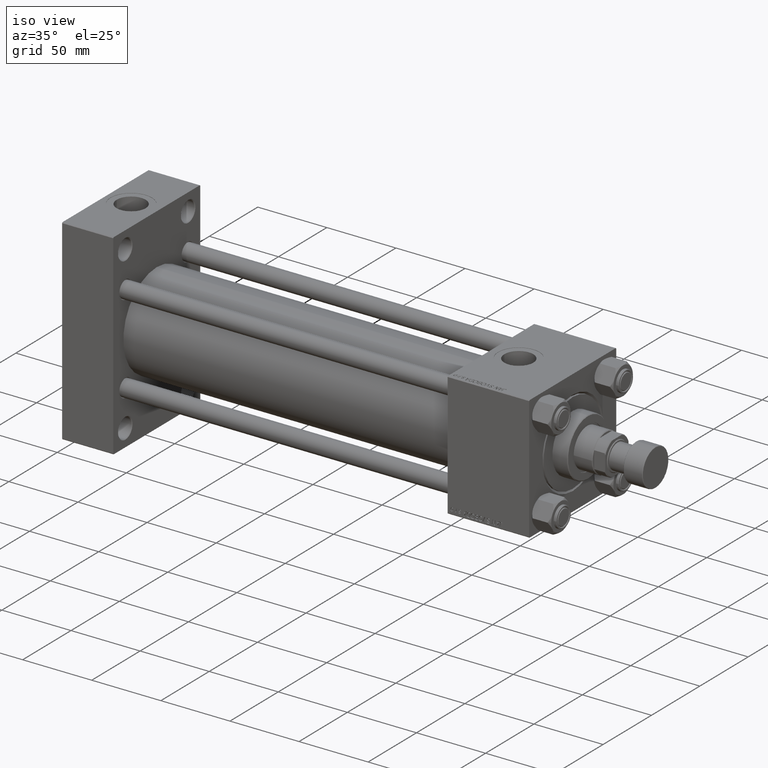
[diagram: clean part render]
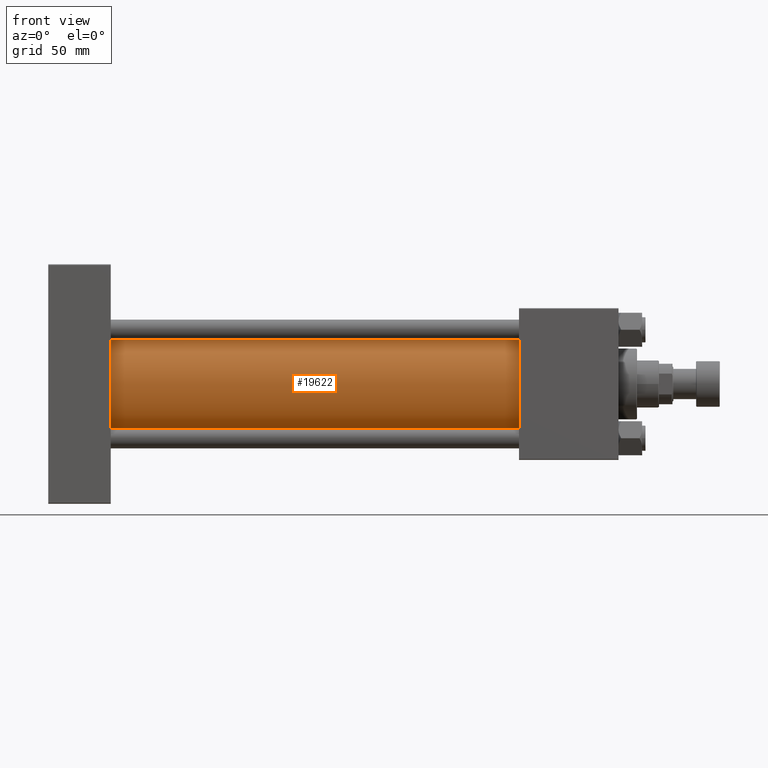
[diagram: tour spotlight — one face highlighted and labeled with its STEP entity id]
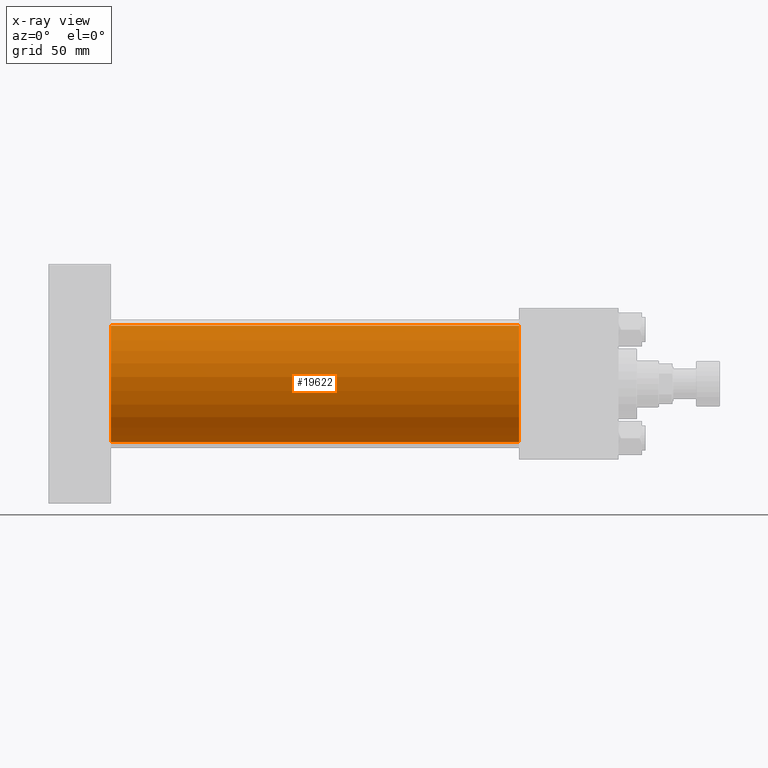
[diagram: x-ray of the same camera — body ghosted, this tour face saturated]
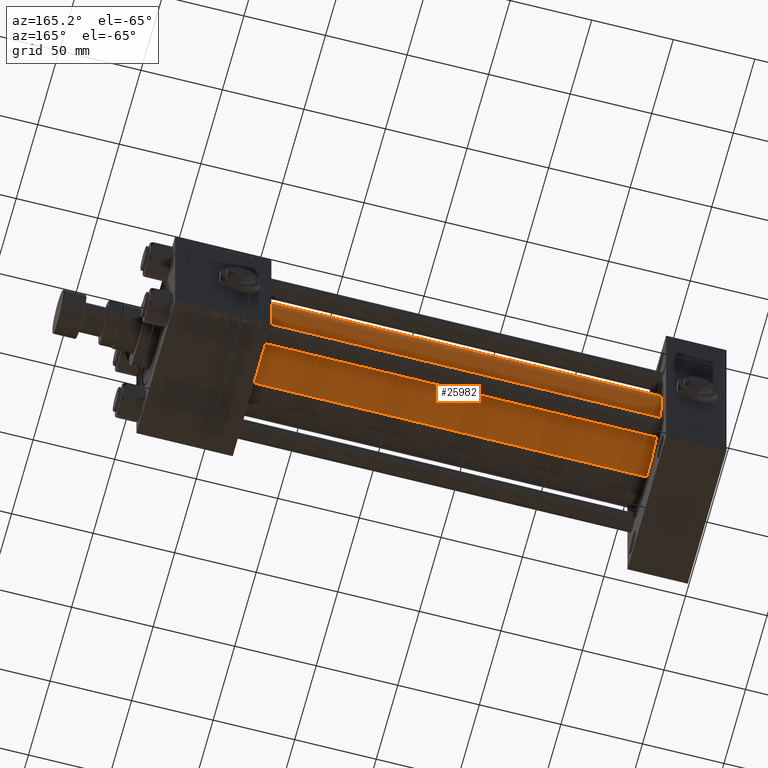
[diagram: tour spotlight — one face highlighted and labeled with its STEP entity id]
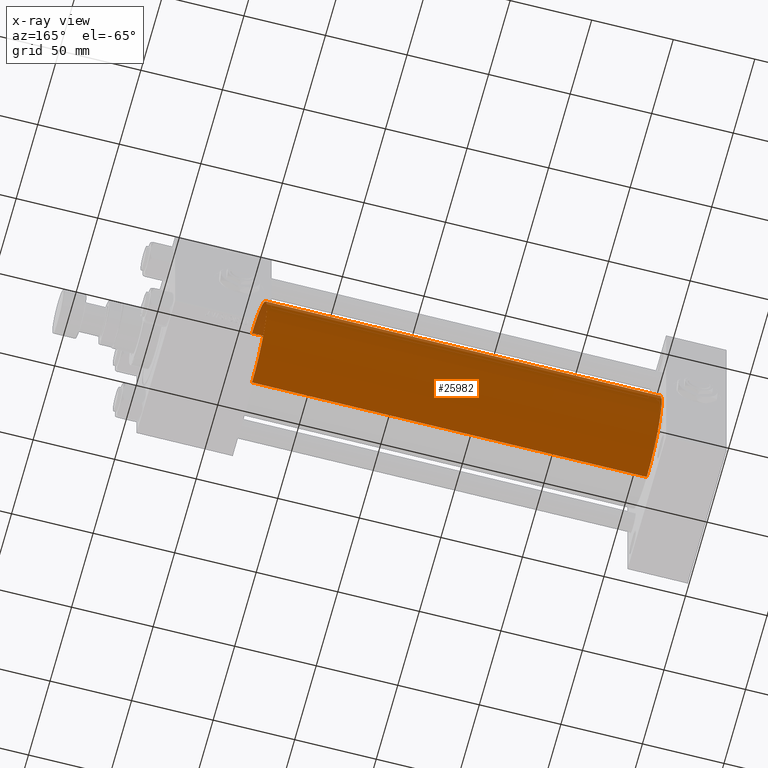
[diagram: x-ray of the same camera — body ghosted, this tour face saturated]
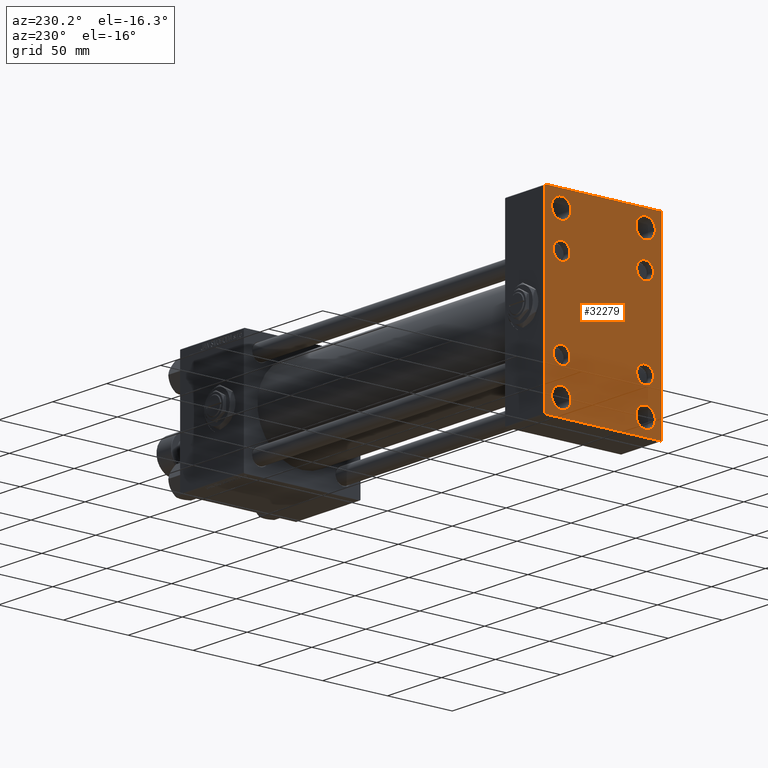
[diagram: tour spotlight — one face highlighted and labeled with its STEP entity id]
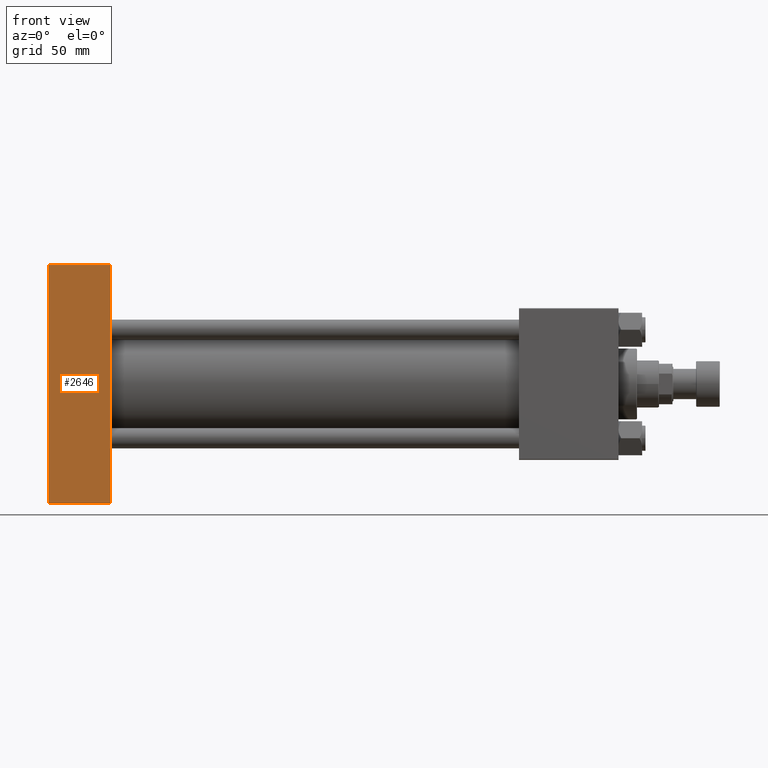
[diagram: tour spotlight — one face highlighted and labeled with its STEP entity id]
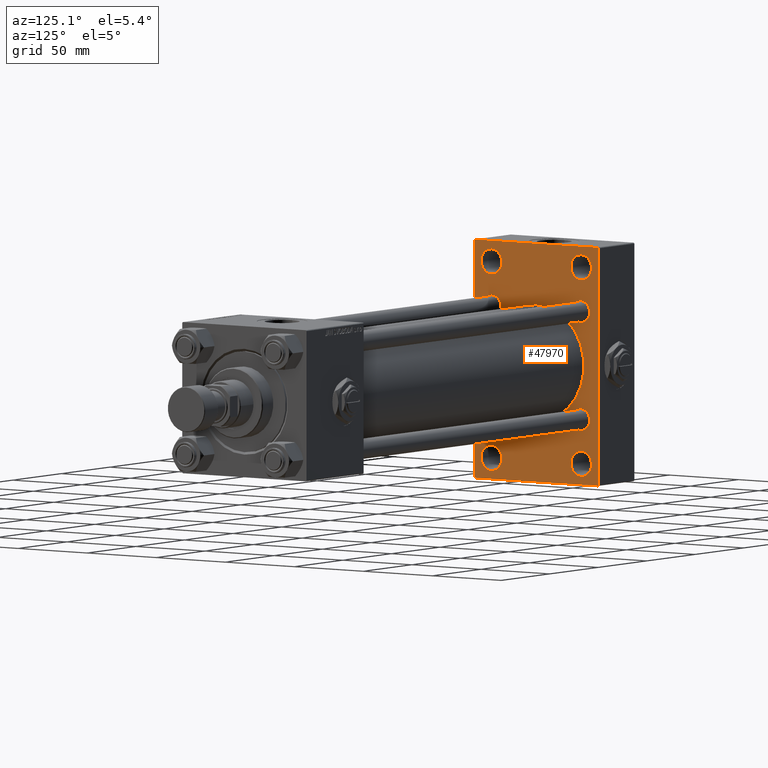
[diagram: tour spotlight — one face highlighted and labeled with its STEP entity id]
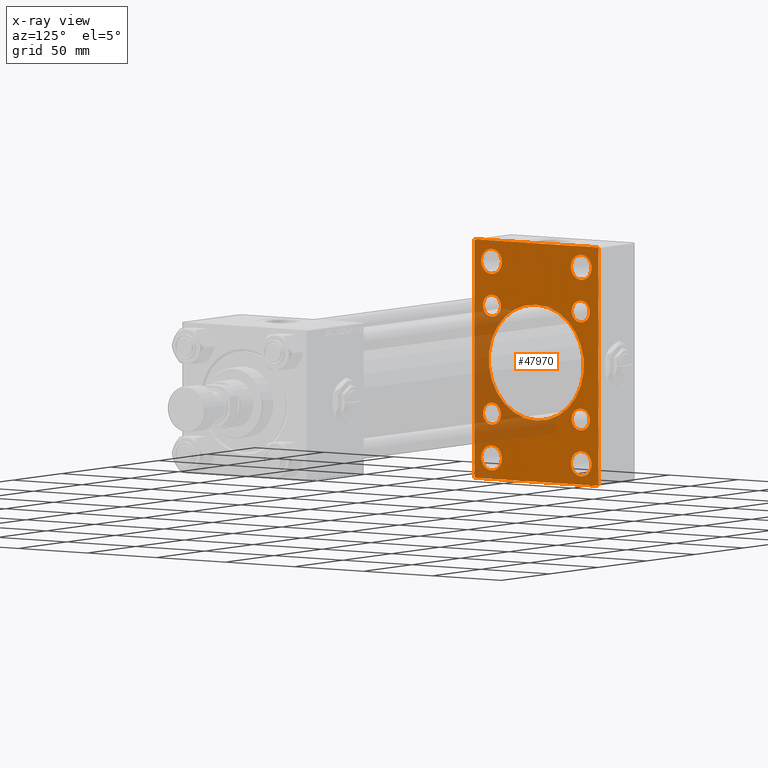
[diagram: x-ray of the same camera — body ghosted, this tour face saturated]
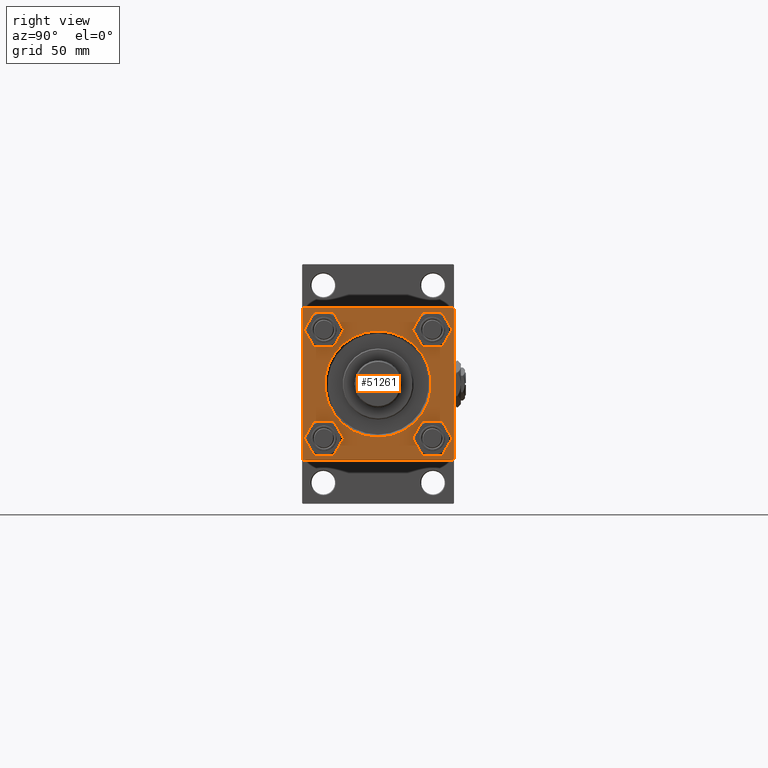
[diagram: tour spotlight — one face highlighted and labeled with its STEP entity id]
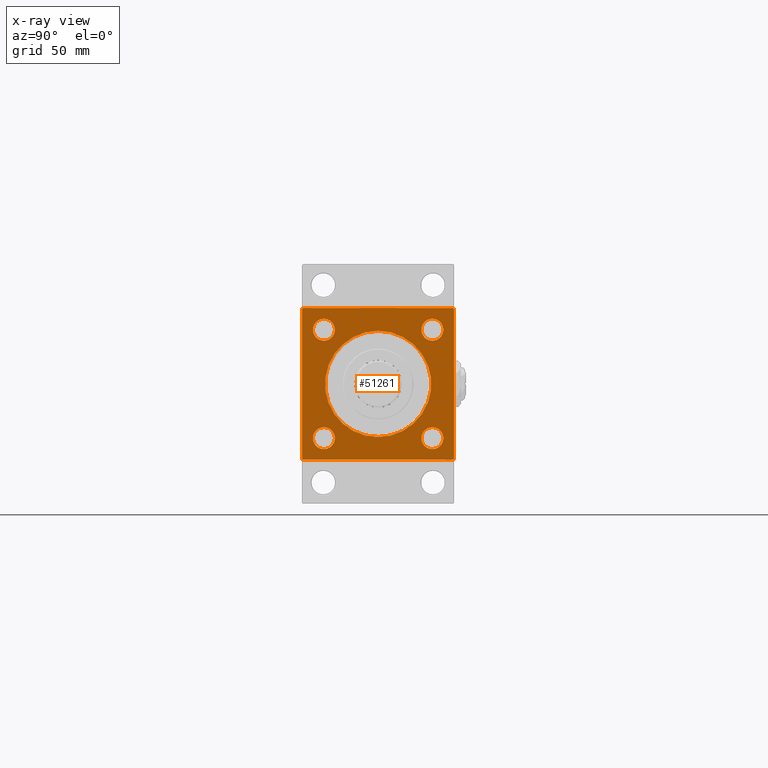
[diagram: x-ray of the same camera — body ghosted, this tour face saturated]
A machine part: a face-by-face anatomy tour. The part has 1251 B-rep faces; the first image is the clean iso view, then the 6 largest visible faces are spotlighted one at a time (largest first), each with its STEP entity span.

Face 1 — front view, entity #19622. An x-ray twin of the same camera follows (body ghosted, this face saturated) — the face is partly hidden behind the body. In plain terms, the highlighted cylindrical surface (partial cylindrical patch) has radius 34.5 mm, axis along (-1, -0, -0).
Definition (entity closure, byte-faithful):
#1342 = VECTOR ( 'NONE', #44771, 1000.000000000000000 ) ;
#3816 = ORIENTED_EDGE ( 'NONE', *, *, #50555, .T. ) ;
#4872 = CARTESIAN_POINT ( 'NONE',  ( 278.9999999999999432, 1.622946243093158675E-15, -34.50000000000000000 ) ) ;
#6199 = DIRECTION ( 'NONE',  ( 0.000000000000000000, 0.000000000000000000, 1.000000000000000000 ) ) ;
#6485 = VERTEX_POINT ( 'NONE', #9391 ) ;
#7160 = CARTESIAN_POINT ( 'NONE',  ( 37.00000000000000711, -2.602085213965210642E-15, 0.000000000000000000 ) ) ;
#8651 = DIRECTION ( 'NONE',  ( 0.000000000000000000, 0.000000000000000000, -1.000000000000000000 ) ) ;
#9391 = CARTESIAN_POINT ( 'NONE',  ( 278.9999999999999432, -2.602085213965210642E-15, 34.50000000000000000 ) ) ;
#10457 = DIRECTION ( 'NONE',  ( -1.000000000000000000, -0.000000000000000000, -0.000000000000000000 ) ) ;
#10689 = AXIS2_PLACEMENT_3D ( 'NONE', #33871, #10457, #6199 ) ;
#12104 = LINE ( 'NONE', #44509, #1342 ) ;
#12850 = VECTOR ( 'NONE', #29935, 1000.000000000000000 ) ;
#13072 = CIRCLE ( 'NONE', #32607, 34.50000000000000000 ) ;
#13195 = DIRECTION ( 'NONE',  ( 1.000000000000000000, 0.000000000000000000, 0.000000000000000000 ) ) ;
#13463 = CARTESIAN_POINT ( 'NONE',  ( 278.9999999999999432, 1.622946243093158675E-15, -34.50000000000000000 ) ) ;
#17483 = VERTEX_POINT ( 'NONE', #24904 ) ;
#17671 = CYLINDRICAL_SURFACE ( 'NONE', #10689, 34.50000000000000000 ) ;
#17936 = FACE_OUTER_BOUND ( 'NONE', #28443, .T. ) ;
#19480 = EDGE_CURVE ( 'NONE', #6485, #39399, #12104, .T. ) ;
#19622 = ADVANCED_FACE ( 'NONE', ( #17936 ), #17671, .T. ) ;
#23631 = ORIENTED_EDGE ( 'NONE', *, *, #38351, .F. ) ;
#24904 = CARTESIAN_POINT ( 'NONE',  ( 37.00000000000000711, 1.622946243093158675E-15, -34.50000000000000000 ) ) ;
#24984 = ORIENTED_EDGE ( 'NONE', *, *, #41882, .F. ) ;
#25694 = LINE ( 'NONE', #13463, #12850 ) ;
#28443 = EDGE_LOOP ( 'NONE', ( #23631, #24984, #32958, #3816 ) ) ;
#29935 = DIRECTION ( 'NONE',  ( -1.000000000000000000, -0.000000000000000000, -0.000000000000000000 ) ) ;
#32607 = AXIS2_PLACEMENT_3D ( 'NONE', #7160, #52076, #51035 ) ;
#32958 = ORIENTED_EDGE ( 'NONE', *, *, #19480, .T. ) ;
#33422 = AXIS2_PLACEMENT_3D ( 'NONE', #45064, #13195, #8651 ) ;
#33871 = CARTESIAN_POINT ( 'NONE',  ( 278.9999999999999432, -2.602085213965210642E-15, 0.000000000000000000 ) ) ;
#38351 = EDGE_CURVE ( 'NONE', #46303, #17483, #25694, .T. ) ;
#39399 = VERTEX_POINT ( 'NONE', #43984 ) ;
#41882 = EDGE_CURVE ( 'NONE', #6485, #46303, #44448, .T. ) ;
#43984 = CARTESIAN_POINT ( 'NONE',  ( 37.00000000000000711, -2.602085213965210642E-15, 34.50000000000000000 ) ) ;
#44448 = CIRCLE ( 'NONE', #33422, 34.50000000000000000 ) ;
#44509 = CARTESIAN_POINT ( 'NONE',  ( 278.9999999999999432, -2.602085213965210642E-15, 34.50000000000000000 ) ) ;
#44771 = DIRECTION ( 'NONE',  ( -1.000000000000000000, -0.000000000000000000, -0.000000000000000000 ) ) ;
#45064 = CARTESIAN_POINT ( 'NONE',  ( 278.9999999999999432, -2.602085213965210642E-15, 0.000000000000000000 ) ) ;
#46303 = VERTEX_POINT ( 'NONE', #4872 ) ;
#50555 = EDGE_CURVE ( 'NONE', #39399, #17483, #13072, .T. ) ;
#51035 = DIRECTION ( 'NONE',  ( 0.000000000000000000, 0.000000000000000000, 1.000000000000000000 ) ) ;
#52076 = DIRECTION ( 'NONE',  ( 1.000000000000000000, 0.000000000000000000, 0.000000000000000000 ) ) ;

Face 2 — auxiliary view, entity #25982. An x-ray twin of the same camera follows (body ghosted, this face saturated) — the face is partly hidden behind the body. In plain terms, the highlighted cylindrical surface (partial cylindrical patch) has radius 34.5 mm, axis along (-1, -0, -0).
Definition (entity closure, byte-faithful):
#1342 = VECTOR ( 'NONE', #44771, 1000.000000000000000 ) ;
#4064 = DIRECTION ( 'NONE',  ( 0.000000000000000000, 0.000000000000000000, -1.000000000000000000 ) ) ;
#4872 = CARTESIAN_POINT ( 'NONE',  ( 278.9999999999999432, 1.622946243093158675E-15, -34.50000000000000000 ) ) ;
#6485 = VERTEX_POINT ( 'NONE', #9391 ) ;
#6948 = CIRCLE ( 'NONE', #35802, 34.50000000000000000 ) ;
#8048 = CARTESIAN_POINT ( 'NONE',  ( 278.9999999999999432, -2.602085213965210642E-15, 0.000000000000000000 ) ) ;
#8739 = EDGE_LOOP ( 'NONE', ( #50531, #46042, #17376, #9348 ) ) ;
#9348 = ORIENTED_EDGE ( 'NONE', *, *, #19480, .F. ) ;
#9391 = CARTESIAN_POINT ( 'NONE',  ( 278.9999999999999432, -2.602085213965210642E-15, 34.50000000000000000 ) ) ;
#12104 = LINE ( 'NONE', #44509, #1342 ) ;
#12850 = VECTOR ( 'NONE', #29935, 1000.000000000000000 ) ;
#13463 = CARTESIAN_POINT ( 'NONE',  ( 278.9999999999999432, 1.622946243093158675E-15, -34.50000000000000000 ) ) ;
#13551 = AXIS2_PLACEMENT_3D ( 'NONE', #8048, #32522, #4064 ) ;
#13863 = DIRECTION ( 'NONE',  ( -1.000000000000000000, -0.000000000000000000, -0.000000000000000000 ) ) ;
#14451 = EDGE_CURVE ( 'NONE', #46303, #6485, #50036, .T. ) ;
#16364 = CARTESIAN_POINT ( 'NONE',  ( 278.9999999999999432, -2.602085213965210642E-15, 0.000000000000000000 ) ) ;
#17376 = ORIENTED_EDGE ( 'NONE', *, *, #36378, .T. ) ;
#17483 = VERTEX_POINT ( 'NONE', #24904 ) ;
#19480 = EDGE_CURVE ( 'NONE', #6485, #39399, #12104, .T. ) ;
#21579 = DIRECTION ( 'NONE',  ( 0.000000000000000000, 0.000000000000000000, 1.000000000000000000 ) ) ;
#24904 = CARTESIAN_POINT ( 'NONE',  ( 37.00000000000000711, 1.622946243093158675E-15, -34.50000000000000000 ) ) ;
#25694 = LINE ( 'NONE', #13463, #12850 ) ;
#25982 = ADVANCED_FACE ( 'NONE', ( #29811 ), #38021, .T. ) ;
#29811 = FACE_OUTER_BOUND ( 'NONE', #8739, .T. ) ;
#29935 = DIRECTION ( 'NONE',  ( -1.000000000000000000, -0.000000000000000000, -0.000000000000000000 ) ) ;
#30351 = AXIS2_PLACEMENT_3D ( 'NONE', #16364, #13863, #21579 ) ;
#32522 = DIRECTION ( 'NONE',  ( 1.000000000000000000, 0.000000000000000000, 0.000000000000000000 ) ) ;
#35802 = AXIS2_PLACEMENT_3D ( 'NONE', #42727, #39268, #38745 ) ;
#36378 = EDGE_CURVE ( 'NONE', #17483, #39399, #6948, .T. ) ;
#38021 = CYLINDRICAL_SURFACE ( 'NONE', #30351, 34.50000000000000000 ) ;
#38351 = EDGE_CURVE ( 'NONE', #46303, #17483, #25694, .T. ) ;
#38745 = DIRECTION ( 'NONE',  ( 0.000000000000000000, 0.000000000000000000, 1.000000000000000000 ) ) ;
#39268 = DIRECTION ( 'NONE',  ( 1.000000000000000000, 0.000000000000000000, 0.000000000000000000 ) ) ;
#39399 = VERTEX_POINT ( 'NONE', #43984 ) ;
#42727 = CARTESIAN_POINT ( 'NONE',  ( 37.00000000000000711, -2.602085213965210642E-15, 0.000000000000000000 ) ) ;
#43984 = CARTESIAN_POINT ( 'NONE',  ( 37.00000000000000711, -2.602085213965210642E-15, 34.50000000000000000 ) ) ;
#44509 = CARTESIAN_POINT ( 'NONE',  ( 278.9999999999999432, -2.602085213965210642E-15, 34.50000000000000000 ) ) ;
#44771 = DIRECTION ( 'NONE',  ( -1.000000000000000000, -0.000000000000000000, -0.000000000000000000 ) ) ;
#46042 = ORIENTED_EDGE ( 'NONE', *, *, #38351, .T. ) ;
#46303 = VERTEX_POINT ( 'NONE', #4872 ) ;
#50036 = CIRCLE ( 'NONE', #13551, 34.50000000000000000 ) ;
#50531 = ORIENTED_EDGE ( 'NONE', *, *, #14451, .F. ) ;

Face 3 — auxiliary view, entity #32279. In plain terms, the highlighted planar face has unit normal (-1, 0, 0).
Definition (entity closure, byte-faithful):
#235 = CARTESIAN_POINT ( 'NONE',  ( 0.000000000000000000, -32.50000000000000000, -58.50000000000000711 ) ) ;
#918 = CARTESIAN_POINT ( 'NONE',  ( 0.000000000000000000, -32.14999999999997726, 25.64999999999997726 ) ) ;
#1138 = EDGE_CURVE ( 'NONE', #35151, #11469, #20801, .T. ) ;
#1345 = EDGE_CURVE ( 'NONE', #5071, #43146, #2590, .T. ) ;
#1362 = VERTEX_POINT ( 'NONE', #46716 ) ;
#1811 = CARTESIAN_POINT ( 'NONE',  ( 0.000000000000000000, -32.50000000000000000, 58.50000000000000000 ) ) ;
#1876 = CARTESIAN_POINT ( 'NONE',  ( 0.000000000000000000, -32.14999999999997726, -38.65000000000004832 ) ) ;
#2127 = ORIENTED_EDGE ( 'NONE', *, *, #36328, .T. ) ;
#2453 = VECTOR ( 'NONE', #25331, 1000.000000000000000 ) ;
#2564 = VERTEX_POINT ( 'NONE', #5741 ) ;
#2590 = LINE ( 'NONE', #26549, #17431 ) ;
#2601 = EDGE_LOOP ( 'NONE', ( #2686, #20548 ) ) ;
#2686 = ORIENTED_EDGE ( 'NONE', *, *, #30594, .T. ) ;
#2740 = FACE_BOUND ( 'NONE', #6665, .T. ) ;
#3380 = LINE ( 'NONE', #44046, #5195 ) ;
#3484 = DIRECTION ( 'NONE',  ( 0.000000000000000000, 0.000000000000000000, 1.000000000000000000 ) ) ;
#3531 = AXIS2_PLACEMENT_3D ( 'NONE', #47132, #10729, #26963 ) ;
#3763 = VERTEX_POINT ( 'NONE', #29370 ) ;
#4926 = DIRECTION ( 'NONE',  ( 1.000000000000000000, 0.000000000000000000, 0.000000000000000000 ) ) ;
#5012 = CIRCLE ( 'NONE', #34739, 6.499999999999977796 ) ;
#5053 = CARTESIAN_POINT ( 'NONE',  ( 0.000000000000000000, -45.00000000000000000, 70.49999999999998579 ) ) ;
#5071 = VERTEX_POINT ( 'NONE', #33711 ) ;
#5195 = VECTOR ( 'NONE', #52273, 1000.000000000000000 ) ;
#5558 = DIRECTION ( 'NONE',  ( 0.000000000000000000, -1.000000000000000000, 0.000000000000000000 ) ) ;
#5719 = EDGE_CURVE ( 'NONE', #22877, #52447, #27200, .T. ) ;
#5741 = CARTESIAN_POINT ( 'NONE',  ( 0.000000000000000000, -44.49999999999999289, -70.99999999999998579 ) ) ;
#5837 = VERTEX_POINT ( 'NONE', #20785 ) ;
#5854 = CARTESIAN_POINT ( 'NONE',  ( 0.000000000000000000, 32.14999999999999147, -32.15000000000000568 ) ) ;
#6078 = CIRCLE ( 'NONE', #40032, 7.500000000000229150 ) ;
#6461 = DIRECTION ( 'NONE',  ( -1.000000000000000000, 0.000000000000000000, -0.000000000000000000 ) ) ;
#6613 = AXIS2_PLACEMENT_3D ( 'NONE', #35653, #19476, #48389 ) ;
#6665 = EDGE_LOOP ( 'NONE', ( #19833, #14216 ) ) ;
#6685 = DIRECTION ( 'NONE',  ( 0.000000000000000000, 0.000000000000000000, 1.000000000000000000 ) ) ;
#7523 = FACE_BOUND ( 'NONE', #9257, .T. ) ;
#7628 = DIRECTION ( 'NONE',  ( 0.000000000000000000, 0.000000000000000000, -1.000000000000000000 ) ) ;
#7644 = EDGE_CURVE ( 'NONE', #28722, #38695, #28663, .T. ) ;
#7740 = VECTOR ( 'NONE', #7628, 1000.000000000000000 ) ;
#7776 = CIRCLE ( 'NONE', #3531, 6.500000000000033751 ) ;
#8419 = ORIENTED_EDGE ( 'NONE', *, *, #5719, .F. ) ;
#8463 = EDGE_CURVE ( 'NONE', #1362, #27170, #33803, .T. ) ;
#8467 = CARTESIAN_POINT ( 'NONE',  ( 0.000000000000000000, 32.50000000000000000, -58.50000000000000711 ) ) ;
#9257 = EDGE_LOOP ( 'NONE', ( #28647, #44598 ) ) ;
#9669 = AXIS2_PLACEMENT_3D ( 'NONE', #235, #20204, #12207 ) ;
#10431 = CARTESIAN_POINT ( 'NONE',  ( 0.000000000000000000, 32.14999999999999147, 32.15000000000000568 ) ) ;
#10558 = LINE ( 'NONE', #26795, #46012 ) ;
#10623 = CARTESIAN_POINT ( 'NONE',  ( 0.000000000000000000, 32.50000000000000000, 58.50000000000000000 ) ) ;
#10727 = PLANE ( 'NONE',  #46679 ) ;
#10729 = DIRECTION ( 'NONE',  ( 1.000000000000000000, 0.000000000000000000, 0.000000000000000000 ) ) ;
#10885 = CIRCLE ( 'NONE', #32925, 7.500000000000284217 ) ;
#11150 = DIRECTION ( 'NONE',  ( 1.000000000000000000, 0.000000000000000000, 0.000000000000000000 ) ) ;
#11241 = DIRECTION ( 'NONE',  ( 1.000000000000000000, 0.000000000000000000, 0.000000000000000000 ) ) ;
#11469 = VERTEX_POINT ( 'NONE', #48195 ) ;
#12207 = DIRECTION ( 'NONE',  ( 0.000000000000000000, 0.000000000000000000, 1.000000000000000000 ) ) ;
#12348 = ORIENTED_EDGE ( 'NONE', *, *, #13055, .T. ) ;
#12994 = CARTESIAN_POINT ( 'NONE',  ( 0.000000000000000000, -32.50000000000000000, -58.50000000000000711 ) ) ;
#13055 = EDGE_CURVE ( 'NONE', #5837, #47654, #34069, .T. ) ;
#13562 = CARTESIAN_POINT ( 'NONE',  ( 0.000000000000000000, 45.00000000000000711, -70.99999999999998579 ) ) ;
#13662 = CARTESIAN_POINT ( 'NONE',  ( 0.000000000000000000, -32.50000000000000000, 66.00000000000022737 ) ) ;
#14039 = CARTESIAN_POINT ( 'NONE',  ( 0.000000000000000000, -32.50000000000000000, -50.99999999999972289 ) ) ;
#14216 = ORIENTED_EDGE ( 'NONE', *, *, #27468, .T. ) ;
#14229 = VECTOR ( 'NONE', #20982, 1000.000000000000000 ) ;
#14457 = CARTESIAN_POINT ( 'NONE',  ( 0.000000000000000000, -45.00000000000000000, 70.99999999999998579 ) ) ;
#14643 = DIRECTION ( 'NONE',  ( 0.000000000000000000, 0.000000000000000000, 1.000000000000000000 ) ) ;
#15406 = CIRCLE ( 'NONE', #23911, 6.499999999999977796 ) ;
#16297 = ORIENTED_EDGE ( 'NONE', *, *, #29569, .T. ) ;
#16731 = DIRECTION ( 'NONE',  ( 1.000000000000000000, 0.000000000000000000, 0.000000000000000000 ) ) ;
#16875 = ORIENTED_EDGE ( 'NONE', *, *, #23251, .T. ) ;
#17192 = CARTESIAN_POINT ( 'NONE',  ( 0.000000000000000000, 32.50000000000000000, 50.99999999999977263 ) ) ;
#17227 = CARTESIAN_POINT ( 'NONE',  ( 0.000000000000000000, 32.50000000000000000, 66.00000000000022737 ) ) ;
#17323 = CIRCLE ( 'NONE', #26663, 6.500000000000033751 ) ;
#17408 = ORIENTED_EDGE ( 'NONE', *, *, #31858, .T. ) ;
#17431 = VECTOR ( 'NONE', #47242, 1000.000000000000000 ) ;
#18303 = DIRECTION ( 'NONE',  ( 0.000000000000000000, 0.7071067811865573427, -0.7071067811865378028 ) ) ;
#18350 = ORIENTED_EDGE ( 'NONE', *, *, #39177, .T. ) ;
#18475 = ORIENTED_EDGE ( 'NONE', *, *, #8463, .T. ) ;
#18640 = DIRECTION ( 'NONE',  ( 1.000000000000000000, 0.000000000000000000, 0.000000000000000000 ) ) ;
#18939 = ORIENTED_EDGE ( 'NONE', *, *, #44952, .T. ) ;
#19294 = CIRCLE ( 'NONE', #52379, 6.500000000000033751 ) ;
#19476 = DIRECTION ( 'NONE',  ( 1.000000000000000000, 0.000000000000000000, 0.000000000000000000 ) ) ;
#19833 = ORIENTED_EDGE ( 'NONE', *, *, #31728, .T. ) ;
#20204 = DIRECTION ( 'NONE',  ( 1.000000000000000000, 0.000000000000000000, 0.000000000000000000 ) ) ;
#20217 = LINE ( 'NONE', #32425, #14229 ) ;
#20283 = DIRECTION ( 'NONE',  ( 0.000000000000000000, 0.000000000000000000, 1.000000000000000000 ) ) ;
#20548 = ORIENTED_EDGE ( 'NONE', *, *, #35143, .T. ) ;
#20782 = ORIENTED_EDGE ( 'NONE', *, *, #40634, .T. ) ;
#20785 = CARTESIAN_POINT ( 'NONE',  ( 0.000000000000000000, 45.00000000000000711, -70.49999999999997158 ) ) ;
#20801 = CIRCLE ( 'NONE', #41988, 7.500000000000284217 ) ;
#20982 = DIRECTION ( 'NONE',  ( 0.000000000000000000, -0.7071067811865524577, 0.7071067811865426878 ) ) ;
#21003 = EDGE_LOOP ( 'NONE', ( #2127, #26751 ) ) ;
#21735 = ORIENTED_EDGE ( 'NONE', *, *, #25546, .T. ) ;
#21760 = DIRECTION ( 'NONE',  ( 0.000000000000000000, 0.000000000000000000, 1.000000000000000000 ) ) ;
#21820 = EDGE_CURVE ( 'NONE', #38695, #28722, #19294, .T. ) ;
#22090 = CIRCLE ( 'NONE', #51778, 6.500000000000033751 ) ;
#22327 = VERTEX_POINT ( 'NONE', #14039 ) ;
#22877 = VERTEX_POINT ( 'NONE', #5053 ) ;
#23232 = FACE_BOUND ( 'NONE', #32835, .T. ) ;
#23251 = EDGE_CURVE ( 'NONE', #25586, #22327, #10885, .T. ) ;
#23462 = DIRECTION ( 'NONE',  ( 0.000000000000000000, 0.000000000000000000, 1.000000000000000000 ) ) ;
#23577 = CARTESIAN_POINT ( 'NONE',  ( 0.000000000000000000, -45.00000000000000000, -70.50000000000000000 ) ) ;
#23742 = CARTESIAN_POINT ( 'NONE',  ( 0.000000000000000000, 32.14999999999999147, -25.65000000000002700 ) ) ;
#23769 = FACE_BOUND ( 'NONE', #2601, .T. ) ;
#23911 = AXIS2_PLACEMENT_3D ( 'NONE', #5854, #18640, #14643 ) ;
#24718 = CARTESIAN_POINT ( 'NONE',  ( 0.000000000000000000, 32.14999999999999147, 25.64999999999997016 ) ) ;
#24858 = VERTEX_POINT ( 'NONE', #24718 ) ;
#25331 = DIRECTION ( 'NONE',  ( -0.000000000000000000, -0.7071067811865279218, -0.7071067811865671127 ) ) ;
#25373 = CARTESIAN_POINT ( 'NONE',  ( 0.000000000000000000, -32.50000000000000000, 58.50000000000000000 ) ) ;
#25546 = EDGE_CURVE ( 'NONE', #2564, #52447, #20217, .T. ) ;
#25586 = VERTEX_POINT ( 'NONE', #37166 ) ;
#25773 = ORIENTED_EDGE ( 'NONE', *, *, #50606, .T. ) ;
#26549 = CARTESIAN_POINT ( 'NONE',  ( 0.000000000000000000, 45.00000000000000711, 71.00000000000000000 ) ) ;
#26663 = AXIS2_PLACEMENT_3D ( 'NONE', #10431, #34623, #26668 ) ;
#26668 = DIRECTION ( 'NONE',  ( 0.000000000000000000, 0.000000000000000000, 1.000000000000000000 ) ) ;
#26699 = DIRECTION ( 'NONE',  ( -0.000000000000000000, 0.000000000000000000, 1.000000000000000000 ) ) ;
#26751 = ORIENTED_EDGE ( 'NONE', *, *, #42974, .T. ) ;
#26795 = CARTESIAN_POINT ( 'NONE',  ( -0.000000000000000000, 57.74999999999938183, 57.75000000000098055 ) ) ;
#26901 = VERTEX_POINT ( 'NONE', #39748 ) ;
#26963 = DIRECTION ( 'NONE',  ( 0.000000000000000000, 0.000000000000000000, 1.000000000000000000 ) ) ;
#27170 = VERTEX_POINT ( 'NONE', #918 ) ;
#27200 = LINE ( 'NONE', #14457, #37082 ) ;
#27468 = EDGE_CURVE ( 'NONE', #35704, #29705, #52484, .T. ) ;
#27745 = FACE_BOUND ( 'NONE', #50756, .T. ) ;
#27854 = LINE ( 'NONE', #44050, #7740 ) ;
#28104 = AXIS2_PLACEMENT_3D ( 'NONE', #35938, #11241, #20283 ) ;
#28587 = VERTEX_POINT ( 'NONE', #36877 ) ;
#28647 = ORIENTED_EDGE ( 'NONE', *, *, #43150, .T. ) ;
#28663 = CIRCLE ( 'NONE', #36298, 6.500000000000033751 ) ;
#28722 = VERTEX_POINT ( 'NONE', #45378 ) ;
#29049 = ORIENTED_EDGE ( 'NONE', *, *, #50063, .T. ) ;
#29245 = EDGE_LOOP ( 'NONE', ( #25773, #16875 ) ) ;
#29370 = CARTESIAN_POINT ( 'NONE',  ( 0.000000000000000000, 32.14999999999999147, -38.64999999999998437 ) ) ;
#29398 = CARTESIAN_POINT ( 'NONE',  ( 0.000000000000000000, -32.14999999999997726, 32.15000000000001279 ) ) ;
#29569 = EDGE_CURVE ( 'NONE', #47654, #2564, #38510, .T. ) ;
#29705 = VERTEX_POINT ( 'NONE', #17227 ) ;
#29954 = ORIENTED_EDGE ( 'NONE', *, *, #1345, .F. ) ;
#30538 = DIRECTION ( 'NONE',  ( 1.000000000000000000, 0.000000000000000000, 0.000000000000000000 ) ) ;
#30594 = EDGE_CURVE ( 'NONE', #42346, #3763, #5012, .T. ) ;
#30848 = CARTESIAN_POINT ( 'NONE',  ( 0.000000000000000000, 32.50000000000000000, -66.00000000000028422 ) ) ;
#31728 = EDGE_CURVE ( 'NONE', #29705, #35704, #45828, .T. ) ;
#31858 = EDGE_CURVE ( 'NONE', #27170, #1362, #22090, .T. ) ;
#31945 = DIRECTION ( 'NONE',  ( 1.000000000000000000, 0.000000000000000000, 0.000000000000000000 ) ) ;
#32279 = ADVANCED_FACE ( 'NONE', ( #2740, #42875, #46866, #7523, #35174, #27745, #23769, #23232, #39933 ), #10727, .T. ) ;
#32284 = AXIS2_PLACEMENT_3D ( 'NONE', #10623, #43038, #50773 ) ;
#32425 = CARTESIAN_POINT ( 'NONE',  ( 0.000000000000000000, -57.74999999999968026, -57.75000000000048317 ) ) ;
#32715 = DIRECTION ( 'NONE',  ( 1.000000000000000000, 0.000000000000000000, 0.000000000000000000 ) ) ;
#32835 = EDGE_LOOP ( 'NONE', ( #29049, #18939 ) ) ;
#32925 = AXIS2_PLACEMENT_3D ( 'NONE', #12994, #42453, #21760 ) ;
#33331 = DIRECTION ( 'NONE',  ( 1.000000000000000000, 0.000000000000000000, 0.000000000000000000 ) ) ;
#33711 = CARTESIAN_POINT ( 'NONE',  ( 0.000000000000000000, 44.50000000000000711, 71.00000000000000000 ) ) ;
#33803 = CIRCLE ( 'NONE', #40587, 6.500000000000033751 ) ;
#34069 = LINE ( 'NONE', #41765, #2453 ) ;
#34623 = DIRECTION ( 'NONE',  ( 1.000000000000000000, 0.000000000000000000, 0.000000000000000000 ) ) ;
#34739 = AXIS2_PLACEMENT_3D ( 'NONE', #52062, #11150, #36365 ) ;
#35143 = EDGE_CURVE ( 'NONE', #3763, #42346, #15406, .T. ) ;
#35151 = VERTEX_POINT ( 'NONE', #30848 ) ;
#35174 = FACE_BOUND ( 'NONE', #35825, .T. ) ;
#35653 = CARTESIAN_POINT ( 'NONE',  ( 0.000000000000000000, 32.50000000000000000, 58.50000000000000000 ) ) ;
#35667 = EDGE_CURVE ( 'NONE', #22877, #43146, #3380, .T. ) ;
#35704 = VERTEX_POINT ( 'NONE', #17192 ) ;
#35825 = EDGE_LOOP ( 'NONE', ( #18475, #17408 ) ) ;
#35938 = CARTESIAN_POINT ( 'NONE',  ( 0.000000000000000000, 32.50000000000000000, -58.50000000000000711 ) ) ;
#36298 = AXIS2_PLACEMENT_3D ( 'NONE', #48394, #32715, #3484 ) ;
#36328 = EDGE_CURVE ( 'NONE', #46287, #28587, #6078, .T. ) ;
#36365 = DIRECTION ( 'NONE',  ( 0.000000000000000000, 0.000000000000000000, 1.000000000000000000 ) ) ;
#36825 = CIRCLE ( 'NONE', #9669, 7.500000000000284217 ) ;
#36877 = CARTESIAN_POINT ( 'NONE',  ( 0.000000000000000000, -32.50000000000000000, 50.99999999999976552 ) ) ;
#37082 = VECTOR ( 'NONE', #46846, 1000.000000000000000 ) ;
#37159 = DIRECTION ( 'NONE',  ( 0.000000000000000000, 0.000000000000000000, 1.000000000000000000 ) ) ;
#37166 = CARTESIAN_POINT ( 'NONE',  ( 0.000000000000000000, -32.50000000000000000, -66.00000000000028422 ) ) ;
#38510 = LINE ( 'NONE', #13562, #43151 ) ;
#38553 = CARTESIAN_POINT ( 'NONE',  ( 0.000000000000000000, 44.50000000000002132, -70.99999999999998579 ) ) ;
#38695 = VERTEX_POINT ( 'NONE', #1876 ) ;
#38850 = DIRECTION ( 'NONE',  ( 1.000000000000000000, 0.000000000000000000, 0.000000000000000000 ) ) ;
#38889 = CARTESIAN_POINT ( 'NONE',  ( 0.000000000000000000, 0.000000000000000000, 0.000000000000000000 ) ) ;
#39177 = EDGE_CURVE ( 'NONE', #26901, #5837, #27854, .T. ) ;
#39246 = ORIENTED_EDGE ( 'NONE', *, *, #21820, .T. ) ;
#39748 = CARTESIAN_POINT ( 'NONE',  ( 0.000000000000000000, 45.00000000000000711, 70.50000000000000000 ) ) ;
#39933 = FACE_OUTER_BOUND ( 'NONE', #51472, .T. ) ;
#40032 = AXIS2_PLACEMENT_3D ( 'NONE', #1811, #30538, #46461 ) ;
#40587 = AXIS2_PLACEMENT_3D ( 'NONE', #50831, #38850, #23462 ) ;
#40634 = EDGE_CURVE ( 'NONE', #5071, #26901, #10558, .T. ) ;
#41764 = CARTESIAN_POINT ( 'NONE',  ( 0.000000000000000000, 32.14999999999999147, 38.65000000000004832 ) ) ;
#41765 = CARTESIAN_POINT ( 'NONE',  ( -0.000000000000000000, 57.75000000000122924, -57.74999999999802469 ) ) ;
#41988 = AXIS2_PLACEMENT_3D ( 'NONE', #8467, #16731, #37159 ) ;
#42346 = VERTEX_POINT ( 'NONE', #23742 ) ;
#42453 = DIRECTION ( 'NONE',  ( 1.000000000000000000, 0.000000000000000000, 0.000000000000000000 ) ) ;
#42491 = CIRCLE ( 'NONE', #49283, 7.500000000000229150 ) ;
#42875 = FACE_BOUND ( 'NONE', #21003, .T. ) ;
#42974 = EDGE_CURVE ( 'NONE', #28587, #46287, #42491, .T. ) ;
#43038 = DIRECTION ( 'NONE',  ( 1.000000000000000000, 0.000000000000000000, 0.000000000000000000 ) ) ;
#43098 = CARTESIAN_POINT ( 'NONE',  ( 0.000000000000000000, -32.14999999999997726, -32.15000000000001279 ) ) ;
#43146 = VERTEX_POINT ( 'NONE', #47639 ) ;
#43150 = EDGE_CURVE ( 'NONE', #11469, #35151, #51003, .T. ) ;
#43151 = VECTOR ( 'NONE', #5558, 1000.000000000000000 ) ;
#44046 = CARTESIAN_POINT ( 'NONE',  ( -0.000000000000000000, -57.75000000000092371, 57.74999999999852207 ) ) ;
#44050 = CARTESIAN_POINT ( 'NONE',  ( 0.000000000000000000, 45.00000000000000711, 71.00000000000000000 ) ) ;
#44598 = ORIENTED_EDGE ( 'NONE', *, *, #1138, .T. ) ;
#44952 = EDGE_CURVE ( 'NONE', #24858, #45149, #7776, .T. ) ;
#45149 = VERTEX_POINT ( 'NONE', #41764 ) ;
#45378 = CARTESIAN_POINT ( 'NONE',  ( 0.000000000000000000, -32.14999999999997726, -25.64999999999997726 ) ) ;
#45584 = DIRECTION ( 'NONE',  ( 0.000000000000000000, 0.000000000000000000, 1.000000000000000000 ) ) ;
#45792 = DIRECTION ( 'NONE',  ( 0.000000000000000000, 0.000000000000000000, 1.000000000000000000 ) ) ;
#45828 = CIRCLE ( 'NONE', #32284, 7.500000000000214939 ) ;
#46012 = VECTOR ( 'NONE', #18303, 1000.000000000000000 ) ;
#46287 = VERTEX_POINT ( 'NONE', #13662 ) ;
#46431 = ORIENTED_EDGE ( 'NONE', *, *, #7644, .T. ) ;
#46461 = DIRECTION ( 'NONE',  ( 0.000000000000000000, 0.000000000000000000, 1.000000000000000000 ) ) ;
#46679 = AXIS2_PLACEMENT_3D ( 'NONE', #38889, #6461, #26699 ) ;
#46716 = CARTESIAN_POINT ( 'NONE',  ( 0.000000000000000000, -32.14999999999997726, 38.65000000000004832 ) ) ;
#46846 = DIRECTION ( 'NONE',  ( 0.000000000000000000, 0.000000000000000000, -1.000000000000000000 ) ) ;
#46866 = FACE_BOUND ( 'NONE', #29245, .T. ) ;
#47132 = CARTESIAN_POINT ( 'NONE',  ( 0.000000000000000000, 32.14999999999999147, 32.15000000000000568 ) ) ;
#47242 = DIRECTION ( 'NONE',  ( 0.000000000000000000, -1.000000000000000000, -1.541976423090495387E-16 ) ) ;
#47639 = CARTESIAN_POINT ( 'NONE',  ( 0.000000000000000000, -44.49999999999999289, 70.99999999999998579 ) ) ;
#47654 = VERTEX_POINT ( 'NONE', #38553 ) ;
#47911 = ORIENTED_EDGE ( 'NONE', *, *, #35667, .T. ) ;
#48195 = CARTESIAN_POINT ( 'NONE',  ( 0.000000000000000000, 32.50000000000000000, -50.99999999999972289 ) ) ;
#48389 = DIRECTION ( 'NONE',  ( 0.000000000000000000, 0.000000000000000000, 1.000000000000000000 ) ) ;
#48394 = CARTESIAN_POINT ( 'NONE',  ( 0.000000000000000000, -32.14999999999997726, -32.15000000000001279 ) ) ;
#49283 = AXIS2_PLACEMENT_3D ( 'NONE', #25373, #33331, #45792 ) ;
#50063 = EDGE_CURVE ( 'NONE', #45149, #24858, #17323, .T. ) ;
#50606 = EDGE_CURVE ( 'NONE', #22327, #25586, #36825, .T. ) ;
#50756 = EDGE_LOOP ( 'NONE', ( #46431, #39246 ) ) ;
#50773 = DIRECTION ( 'NONE',  ( 0.000000000000000000, 0.000000000000000000, 1.000000000000000000 ) ) ;
#50831 = CARTESIAN_POINT ( 'NONE',  ( 0.000000000000000000, -32.14999999999997726, 32.15000000000001279 ) ) ;
#51003 = CIRCLE ( 'NONE', #28104, 7.500000000000284217 ) ;
#51472 = EDGE_LOOP ( 'NONE', ( #18350, #12348, #16297, #21735, #8419, #47911, #29954, #20782 ) ) ;
#51778 = AXIS2_PLACEMENT_3D ( 'NONE', #29398, #4926, #45584 ) ;
#52062 = CARTESIAN_POINT ( 'NONE',  ( 0.000000000000000000, 32.14999999999999147, -32.15000000000000568 ) ) ;
#52273 = DIRECTION ( 'NONE',  ( -0.000000000000000000, 0.7071067811865328068, 0.7071067811865622277 ) ) ;
#52379 = AXIS2_PLACEMENT_3D ( 'NONE', #43098, #31945, #6685 ) ;
#52447 = VERTEX_POINT ( 'NONE', #23577 ) ;
#52484 = CIRCLE ( 'NONE', #6613, 7.500000000000214939 ) ;

Face 4 — front view, entity #2646. In plain terms, the highlighted planar face has unit normal (0, 1, 0).
Definition (entity closure, byte-faithful):
#2646 = ADVANCED_FACE ( 'NONE', ( #43465 ), #6787, .F. ) ;
#2768 = LINE ( 'NONE', #38658, #6579 ) ;
#5053 = CARTESIAN_POINT ( 'NONE',  ( 0.000000000000000000, -45.00000000000000000, 70.49999999999998579 ) ) ;
#5719 = EDGE_CURVE ( 'NONE', #22877, #52447, #27200, .T. ) ;
#6579 = VECTOR ( 'NONE', #35201, 1000.000000000000000 ) ;
#6787 = PLANE ( 'NONE',  #42941 ) ;
#7460 = EDGE_CURVE ( 'NONE', #20365, #22877, #13113, .T. ) ;
#10790 = DIRECTION ( 'NONE',  ( 0.000000000000000000, -0.000000000000000000, 1.000000000000000000 ) ) ;
#10858 = VECTOR ( 'NONE', #37263, 1000.000000000000000 ) ;
#13113 = LINE ( 'NONE', #25603, #10858 ) ;
#14366 = LINE ( 'NONE', #30568, #20308 ) ;
#14457 = CARTESIAN_POINT ( 'NONE',  ( 0.000000000000000000, -45.00000000000000000, 70.99999999999998579 ) ) ;
#15645 = VERTEX_POINT ( 'NONE', #35132 ) ;
#20308 = VECTOR ( 'NONE', #26334, 1000.000000000000000 ) ;
#20365 = VERTEX_POINT ( 'NONE', #22582 ) ;
#22582 = CARTESIAN_POINT ( 'NONE',  ( 37.00000000000000000, -45.00000000000000000, 70.49999999999998579 ) ) ;
#22736 = EDGE_CURVE ( 'NONE', #20365, #15645, #2768, .T. ) ;
#22877 = VERTEX_POINT ( 'NONE', #5053 ) ;
#23577 = CARTESIAN_POINT ( 'NONE',  ( 0.000000000000000000, -45.00000000000000000, -70.50000000000000000 ) ) ;
#25603 = CARTESIAN_POINT ( 'NONE',  ( 37.00000000000000000, -45.00000000000000000, 70.49999999999998579 ) ) ;
#26187 = ORIENTED_EDGE ( 'NONE', *, *, #30452, .T. ) ;
#26334 = DIRECTION ( 'NONE',  ( 1.000000000000000000, 0.000000000000000000, 0.000000000000000000 ) ) ;
#27200 = LINE ( 'NONE', #14457, #37082 ) ;
#29511 = ORIENTED_EDGE ( 'NONE', *, *, #22736, .F. ) ;
#30452 = EDGE_CURVE ( 'NONE', #52447, #15645, #14366, .T. ) ;
#30568 = CARTESIAN_POINT ( 'NONE',  ( 37.00000000000000000, -45.00000000000000000, -70.50000000000000000 ) ) ;
#35132 = CARTESIAN_POINT ( 'NONE',  ( 37.00000000000000000, -45.00000000000000000, -70.50000000000000000 ) ) ;
#35201 = DIRECTION ( 'NONE',  ( 0.000000000000000000, 0.000000000000000000, -1.000000000000000000 ) ) ;
#35758 = CARTESIAN_POINT ( 'NONE',  ( 37.00000000000000000, -45.00000000000000000, 70.99999999999998579 ) ) ;
#37082 = VECTOR ( 'NONE', #46846, 1000.000000000000000 ) ;
#37263 = DIRECTION ( 'NONE',  ( -1.000000000000000000, 0.000000000000000000, 0.000000000000000000 ) ) ;
#38031 = ORIENTED_EDGE ( 'NONE', *, *, #7460, .T. ) ;
#38658 = CARTESIAN_POINT ( 'NONE',  ( 37.00000000000000000, -45.00000000000000000, 70.99999999999998579 ) ) ;
#39722 = ORIENTED_EDGE ( 'NONE', *, *, #5719, .T. ) ;
#42678 = EDGE_LOOP ( 'NONE', ( #39722, #26187, #29511, #38031 ) ) ;
#42941 = AXIS2_PLACEMENT_3D ( 'NONE', #35758, #51449, #10790 ) ;
#43465 = FACE_OUTER_BOUND ( 'NONE', #42678, .T. ) ;
#46846 = DIRECTION ( 'NONE',  ( 0.000000000000000000, 0.000000000000000000, -1.000000000000000000 ) ) ;
#51449 = DIRECTION ( 'NONE',  ( -0.000000000000000000, 1.000000000000000000, 0.000000000000000000 ) ) ;
#52447 = VERTEX_POINT ( 'NONE', #23577 ) ;

Face 5 — auxiliary view, entity #47970. An x-ray twin of the same camera follows (body ghosted, this face saturated) — the face is partly hidden behind the body. In plain terms, the highlighted planar face has unit normal (-1, 0, 0).
Definition (entity closure, byte-faithful):
#70 = ORIENTED_EDGE ( 'NONE', *, *, #29678, .T. ) ;
#126 = VERTEX_POINT ( 'NONE', #49407 ) ;
#130 = EDGE_LOOP ( 'NONE', ( #22754, #52202 ) ) ;
#435 = EDGE_CURVE ( 'NONE', #25145, #13455, #46928, .T. ) ;
#465 = LINE ( 'NONE', #16698, #2478 ) ;
#1384 = CARTESIAN_POINT ( 'NONE',  ( 37.00000000000000000, 45.00000000000000711, -70.99999999999998579 ) ) ;
#1394 = ORIENTED_EDGE ( 'NONE', *, *, #31918, .T. ) ;
#1563 = DIRECTION ( 'NONE',  ( -0.000000000000000000, 0.000000000000000000, 1.000000000000000000 ) ) ;
#1614 = EDGE_LOOP ( 'NONE', ( #52115, #29252 ) ) ;
#1827 = AXIS2_PLACEMENT_3D ( 'NONE', #34714, #13481, #21988 ) ;
#2008 = AXIS2_PLACEMENT_3D ( 'NONE', #3569, #24320, #15296 ) ;
#2478 = VECTOR ( 'NONE', #32901, 1000.000000000000000 ) ;
#2768 = LINE ( 'NONE', #38658, #6579 ) ;
#2802 = AXIS2_PLACEMENT_3D ( 'NONE', #42691, #6278, #30752 ) ;
#2804 = ORIENTED_EDGE ( 'NONE', *, *, #41592, .F. ) ;
#2896 = EDGE_CURVE ( 'NONE', #23991, #37453, #20055, .T. ) ;
#3134 = EDGE_CURVE ( 'NONE', #3619, #10078, #37806, .T. ) ;
#3197 = EDGE_CURVE ( 'NONE', #10078, #3619, #42062, .T. ) ;
#3378 = CARTESIAN_POINT ( 'NONE',  ( 37.00000000000000000, -32.14999999999997726, -25.64999999999994884 ) ) ;
#3569 = CARTESIAN_POINT ( 'NONE',  ( 37.00000000000000000, -32.50000000000000000, -58.50000000000000711 ) ) ;
#3619 = VERTEX_POINT ( 'NONE', #27875 ) ;
#3776 = EDGE_CURVE ( 'NONE', #14737, #17371, #26879, .T. ) ;
#4077 = AXIS2_PLACEMENT_3D ( 'NONE', #17382, #17650, #30126 ) ;
#4144 = EDGE_CURVE ( 'NONE', #23149, #42679, #41260, .T. ) ;
#4259 = AXIS2_PLACEMENT_3D ( 'NONE', #18503, #38663, #6235 ) ;
#4373 = ORIENTED_EDGE ( 'NONE', *, *, #7516, .F. ) ;
#4881 = EDGE_CURVE ( 'NONE', #17371, #14737, #23511, .T. ) ;
#5234 = CIRCLE ( 'NONE', #39195, 6.500000000000061284 ) ;
#5404 = DIRECTION ( 'NONE',  ( 0.000000000000000000, 0.000000000000000000, 1.000000000000000000 ) ) ;
#5540 = EDGE_LOOP ( 'NONE', ( #16771, #33091 ) ) ;
#5808 = EDGE_LOOP ( 'NONE', ( #43205, #7992 ) ) ;
#5921 = CARTESIAN_POINT ( 'NONE',  ( 37.00000000000000000, 44.50000000000000711, 71.00000000000000000 ) ) ;
#5953 = CARTESIAN_POINT ( 'NONE',  ( 37.00000000000000000, 32.50000000000000000, 58.50000000000000000 ) ) ;
#6212 = CIRCLE ( 'NONE', #2802, 7.500000000000173195 ) ;
#6235 = DIRECTION ( 'NONE',  ( 0.000000000000000000, 0.000000000000000000, 1.000000000000000000 ) ) ;
#6278 = DIRECTION ( 'NONE',  ( -1.000000000000000000, -0.000000000000000000, -0.000000000000000000 ) ) ;
#6320 = CARTESIAN_POINT ( 'NONE',  ( 37.00000000000000000, 32.50000000000000000, -58.50000000000000711 ) ) ;
#6579 = VECTOR ( 'NONE', #35201, 1000.000000000000000 ) ;
#6638 = CARTESIAN_POINT ( 'NONE',  ( 37.00000000000000000, -32.14999999999997726, -32.15000000000001279 ) ) ;
#6701 = CARTESIAN_POINT ( 'NONE',  ( 37.00000000000000000, -32.14999999999997726, 25.64999999999994884 ) ) ;
#6908 = CIRCLE ( 'NONE', #1827, 7.500000000000173195 ) ;
#6948 = CIRCLE ( 'NONE', #35802, 34.50000000000000000 ) ;
#7051 = DIRECTION ( 'NONE',  ( -0.000000000000000000, 0.7071067811865279218, 0.7071067811865671127 ) ) ;
#7160 = CARTESIAN_POINT ( 'NONE',  ( 37.00000000000000711, -2.602085213965210642E-15, 0.000000000000000000 ) ) ;
#7405 = ORIENTED_EDGE ( 'NONE', *, *, #36970, .T. ) ;
#7516 = EDGE_CURVE ( 'NONE', #25145, #50269, #33828, .T. ) ;
#7712 = EDGE_LOOP ( 'NONE', ( #31086, #20917 ) ) ;
#7768 = CARTESIAN_POINT ( 'NONE',  ( 37.00000000000000000, 32.14999999999999147, -32.15000000000000568 ) ) ;
#7886 = AXIS2_PLACEMENT_3D ( 'NONE', #15321, #31274, #1563 ) ;
#7992 = ORIENTED_EDGE ( 'NONE', *, *, #52459, .T. ) ;
#8032 = VECTOR ( 'NONE', #7051, 1000.000000000000000 ) ;
#8179 = AXIS2_PLACEMENT_3D ( 'NONE', #13428, #49546, #33879 ) ;
#8794 = CARTESIAN_POINT ( 'NONE',  ( 37.00000000000000000, 32.14999999999999147, -32.15000000000000568 ) ) ;
#9123 = VECTOR ( 'NONE', #50032, 1000.000000000000000 ) ;
#9172 = CARTESIAN_POINT ( 'NONE',  ( 37.00000000000000000, 32.14999999999999147, 32.15000000000000568 ) ) ;
#9459 = CARTESIAN_POINT ( 'NONE',  ( 37.00000000000000000, 32.50000000000000000, 50.99999999999982947 ) ) ;
#9489 = DIRECTION ( 'NONE',  ( -1.000000000000000000, -0.000000000000000000, -0.000000000000000000 ) ) ;
#10078 = VERTEX_POINT ( 'NONE', #28592 ) ;
#10498 = VECTOR ( 'NONE', #24387, 1000.000000000000000 ) ;
#11513 = CARTESIAN_POINT ( 'NONE',  ( 37.00000000000000000, -32.14999999999997726, 32.15000000000001279 ) ) ;
#11715 = AXIS2_PLACEMENT_3D ( 'NONE', #5953, #22201, #18738 ) ;
#11927 = CARTESIAN_POINT ( 'NONE',  ( 37.00000000000000000, -32.14999999999997726, -38.65000000000007674 ) ) ;
#12182 = VERTEX_POINT ( 'NONE', #23328 ) ;
#12197 = CARTESIAN_POINT ( 'NONE',  ( 37.00000000000000000, 45.00000000000000711, 70.50000000000000000 ) ) ;
#12538 = CARTESIAN_POINT ( 'NONE',  ( 37.00000000000000000, 32.14999999999999147, 38.65000000000001279 ) ) ;
#12548 = LINE ( 'NONE', #37744, #44202 ) ;
#12680 = CIRCLE ( 'NONE', #42362, 7.500000000000158984 ) ;
#13072 = CIRCLE ( 'NONE', #32607, 34.50000000000000000 ) ;
#13086 = DIRECTION ( 'NONE',  ( -1.000000000000000000, -0.000000000000000000, -0.000000000000000000 ) ) ;
#13428 = CARTESIAN_POINT ( 'NONE',  ( 37.00000000000000000, -32.14999999999997726, -32.15000000000001279 ) ) ;
#13455 = VERTEX_POINT ( 'NONE', #14355 ) ;
#13481 = DIRECTION ( 'NONE',  ( -1.000000000000000000, -0.000000000000000000, -0.000000000000000000 ) ) ;
#13507 = CARTESIAN_POINT ( 'NONE',  ( 37.00000000000000000, -32.50000000000000000, -58.50000000000000711 ) ) ;
#13519 = CARTESIAN_POINT ( 'NONE',  ( 37.00000000000000000, -32.14999999999997726, 38.65000000000007674 ) ) ;
#13565 = VERTEX_POINT ( 'NONE', #34535 ) ;
#13601 = EDGE_LOOP ( 'NONE', ( #16560, #21176 ) ) ;
#14073 = FACE_BOUND ( 'NONE', #45462, .T. ) ;
#14097 = AXIS2_PLACEMENT_3D ( 'NONE', #7768, #24017, #44437 ) ;
#14127 = AXIS2_PLACEMENT_3D ( 'NONE', #46180, #14576, #51231 ) ;
#14355 = CARTESIAN_POINT ( 'NONE',  ( 37.00000000000000000, 45.00000000000000711, -70.49999999999997158 ) ) ;
#14459 = CIRCLE ( 'NONE', #31420, 6.500000000000005329 ) ;
#14576 = DIRECTION ( 'NONE',  ( -1.000000000000000000, -0.000000000000000000, -0.000000000000000000 ) ) ;
#14737 = VERTEX_POINT ( 'NONE', #11927 ) ;
#14802 = EDGE_CURVE ( 'NONE', #19647, #13565, #12680, .T. ) ;
#15062 = PLANE ( 'NONE',  #7886 ) ;
#15296 = DIRECTION ( 'NONE',  ( 0.000000000000000000, 0.000000000000000000, 1.000000000000000000 ) ) ;
#15321 = CARTESIAN_POINT ( 'NONE',  ( 37.00000000000000000, 0.000000000000000000, 0.000000000000000000 ) ) ;
#15583 = FACE_BOUND ( 'NONE', #130, .T. ) ;
#15645 = VERTEX_POINT ( 'NONE', #35132 ) ;
#16560 = ORIENTED_EDGE ( 'NONE', *, *, #3776, .T. ) ;
#16611 = VERTEX_POINT ( 'NONE', #12538 ) ;
#16698 = CARTESIAN_POINT ( 'NONE',  ( 37.00000000000000000, -45.00000000000000000, 70.49999999999998579 ) ) ;
#16706 = AXIS2_PLACEMENT_3D ( 'NONE', #6638, #23412, #19947 ) ;
#16771 = ORIENTED_EDGE ( 'NONE', *, *, #14802, .T. ) ;
#17371 = VERTEX_POINT ( 'NONE', #3378 ) ;
#17382 = CARTESIAN_POINT ( 'NONE',  ( 37.00000000000000000, 32.50000000000000000, 58.50000000000000000 ) ) ;
#17483 = VERTEX_POINT ( 'NONE', #24904 ) ;
#17650 = DIRECTION ( 'NONE',  ( -1.000000000000000000, -0.000000000000000000, -0.000000000000000000 ) ) ;
#18503 = CARTESIAN_POINT ( 'NONE',  ( 37.00000000000000000, 32.14999999999999147, 32.15000000000000568 ) ) ;
#18738 = DIRECTION ( 'NONE',  ( 0.000000000000000000, 0.000000000000000000, 1.000000000000000000 ) ) ;
#19195 = AXIS2_PLACEMENT_3D ( 'NONE', #8794, #13086, #49209 ) ;
#19548 = CARTESIAN_POINT ( 'NONE',  ( 37.00000000000000000, -32.50000000000000000, 50.99999999999982236 ) ) ;
#19563 = DIRECTION ( 'NONE',  ( 0.000000000000000000, 0.7071067811865524577, -0.7071067811865426878 ) ) ;
#19647 = VERTEX_POINT ( 'NONE', #50336 ) ;
#19947 = DIRECTION ( 'NONE',  ( 0.000000000000000000, 0.000000000000000000, 1.000000000000000000 ) ) ;
#20055 = CIRCLE ( 'NONE', #28506, 6.500000000000061284 ) ;
#20365 = VERTEX_POINT ( 'NONE', #22582 ) ;
#20513 = VERTEX_POINT ( 'NONE', #30226 ) ;
#20750 = LINE ( 'NONE', #21008, #45536 ) ;
#20917 = ORIENTED_EDGE ( 'NONE', *, *, #3197, .T. ) ;
#20971 = EDGE_CURVE ( 'NONE', #22214, #23890, #20750, .T. ) ;
#21008 = CARTESIAN_POINT ( 'NONE',  ( 37.00000000000000000, 44.50000000000000711, 71.00000000000000000 ) ) ;
#21176 = ORIENTED_EDGE ( 'NONE', *, *, #4881, .T. ) ;
#21788 = FACE_BOUND ( 'NONE', #1614, .T. ) ;
#21988 = DIRECTION ( 'NONE',  ( 0.000000000000000000, 0.000000000000000000, 1.000000000000000000 ) ) ;
#22201 = DIRECTION ( 'NONE',  ( -1.000000000000000000, -0.000000000000000000, -0.000000000000000000 ) ) ;
#22214 = VERTEX_POINT ( 'NONE', #12197 ) ;
#22582 = CARTESIAN_POINT ( 'NONE',  ( 37.00000000000000000, -45.00000000000000000, 70.49999999999998579 ) ) ;
#22736 = EDGE_CURVE ( 'NONE', #20365, #15645, #2768, .T. ) ;
#22754 = ORIENTED_EDGE ( 'NONE', *, *, #4144, .T. ) ;
#23149 = VERTEX_POINT ( 'NONE', #28161 ) ;
#23328 = CARTESIAN_POINT ( 'NONE',  ( 37.00000000000000000, 32.50000000000000000, 66.00000000000017053 ) ) ;
#23412 = DIRECTION ( 'NONE',  ( -1.000000000000000000, -0.000000000000000000, -0.000000000000000000 ) ) ;
#23511 = CIRCLE ( 'NONE', #16706, 6.500000000000061284 ) ;
#23873 = EDGE_CURVE ( 'NONE', #43674, #12182, #52450, .T. ) ;
#23890 = VERTEX_POINT ( 'NONE', #5921 ) ;
#23991 = VERTEX_POINT ( 'NONE', #6701 ) ;
#24017 = DIRECTION ( 'NONE',  ( -1.000000000000000000, -0.000000000000000000, -0.000000000000000000 ) ) ;
#24127 = CARTESIAN_POINT ( 'NONE',  ( 37.00000000000000000, 45.00000000000000711, 71.00000000000000000 ) ) ;
#24320 = DIRECTION ( 'NONE',  ( -1.000000000000000000, -0.000000000000000000, -0.000000000000000000 ) ) ;
#24387 = DIRECTION ( 'NONE',  ( 0.000000000000000000, 0.000000000000000000, -1.000000000000000000 ) ) ;
#24904 = CARTESIAN_POINT ( 'NONE',  ( 37.00000000000000711, 1.622946243093158675E-15, -34.50000000000000000 ) ) ;
#25145 = VERTEX_POINT ( 'NONE', #34890 ) ;
#25422 = DIRECTION ( 'NONE',  ( -1.000000000000000000, -0.000000000000000000, -0.000000000000000000 ) ) ;
#26492 = ORIENTED_EDGE ( 'NONE', *, *, #23873, .T. ) ;
#26879 = CIRCLE ( 'NONE', #8179, 6.500000000000061284 ) ;
#27215 = EDGE_CURVE ( 'NONE', #12182, #43674, #46495, .T. ) ;
#27287 = FACE_BOUND ( 'NONE', #27543, .T. ) ;
#27543 = EDGE_LOOP ( 'NONE', ( #36025, #7405 ) ) ;
#27545 = FACE_BOUND ( 'NONE', #5540, .T. ) ;
#27734 = DIRECTION ( 'NONE',  ( -1.000000000000000000, -0.000000000000000000, -0.000000000000000000 ) ) ;
#27809 = FACE_BOUND ( 'NONE', #7712, .T. ) ;
#27875 = CARTESIAN_POINT ( 'NONE',  ( 37.00000000000000000, 32.14999999999999147, -38.65000000000001279 ) ) ;
#28161 = CARTESIAN_POINT ( 'NONE',  ( 37.00000000000000000, 32.50000000000000000, -66.00000000000017053 ) ) ;
#28260 = CARTESIAN_POINT ( 'NONE',  ( 37.00000000000000000, 45.00000000000000711, -70.49999999999997158 ) ) ;
#28506 = AXIS2_PLACEMENT_3D ( 'NONE', #34126, #41821, #5404 ) ;
#28592 = CARTESIAN_POINT ( 'NONE',  ( 37.00000000000000000, 32.14999999999999147, -25.64999999999999858 ) ) ;
#28729 = DIRECTION ( 'NONE',  ( 0.000000000000000000, -0.7071067811865573427, 0.7071067811865378028 ) ) ;
#29009 = ORIENTED_EDGE ( 'NONE', *, *, #50901, .T. ) ;
#29252 = ORIENTED_EDGE ( 'NONE', *, *, #36378, .F. ) ;
#29678 = EDGE_CURVE ( 'NONE', #20513, #20365, #465, .T. ) ;
#29915 = EDGE_LOOP ( 'NONE', ( #4373, #52280, #2804, #45526, #46116, #70, #40460, #29009 ) ) ;
#30126 = DIRECTION ( 'NONE',  ( 0.000000000000000000, 0.000000000000000000, 1.000000000000000000 ) ) ;
#30226 = CARTESIAN_POINT ( 'NONE',  ( 37.00000000000000000, -44.49999999999999289, 70.99999999999998579 ) ) ;
#30309 = CARTESIAN_POINT ( 'NONE',  ( 37.00000000000000000, 32.14999999999999147, 25.64999999999999858 ) ) ;
#30416 = VERTEX_POINT ( 'NONE', #30309 ) ;
#30752 = DIRECTION ( 'NONE',  ( 0.000000000000000000, 0.000000000000000000, 1.000000000000000000 ) ) ;
#31086 = ORIENTED_EDGE ( 'NONE', *, *, #3134, .T. ) ;
#31274 = DIRECTION ( 'NONE',  ( -1.000000000000000000, 0.000000000000000000, -0.000000000000000000 ) ) ;
#31420 = AXIS2_PLACEMENT_3D ( 'NONE', #9172, #25422, #37598 ) ;
#31861 = EDGE_CURVE ( 'NONE', #16611, #30416, #14459, .T. ) ;
#31918 = EDGE_CURVE ( 'NONE', #30416, #16611, #50943, .T. ) ;
#32607 = AXIS2_PLACEMENT_3D ( 'NONE', #7160, #52076, #51035 ) ;
#32901 = DIRECTION ( 'NONE',  ( -0.000000000000000000, -0.7071067811865328068, -0.7071067811865622277 ) ) ;
#33091 = ORIENTED_EDGE ( 'NONE', *, *, #50855, .T. ) ;
#33828 = LINE ( 'NONE', #1384, #9123 ) ;
#33879 = DIRECTION ( 'NONE',  ( 0.000000000000000000, 0.000000000000000000, 1.000000000000000000 ) ) ;
#34126 = CARTESIAN_POINT ( 'NONE',  ( 37.00000000000000000, -32.14999999999997726, 32.15000000000001279 ) ) ;
#34521 = FACE_BOUND ( 'NONE', #13601, .T. ) ;
#34535 = CARTESIAN_POINT ( 'NONE',  ( 37.00000000000000000, -32.50000000000000000, -50.99999999999985079 ) ) ;
#34714 = CARTESIAN_POINT ( 'NONE',  ( 37.00000000000000000, -32.50000000000000000, 58.50000000000000000 ) ) ;
#34890 = CARTESIAN_POINT ( 'NONE',  ( 37.00000000000000000, 44.50000000000002132, -70.99999999999998579 ) ) ;
#35030 = DIRECTION ( 'NONE',  ( 0.000000000000000000, 0.000000000000000000, 1.000000000000000000 ) ) ;
#35132 = CARTESIAN_POINT ( 'NONE',  ( 37.00000000000000000, -45.00000000000000000, -70.50000000000000000 ) ) ;
#35201 = DIRECTION ( 'NONE',  ( 0.000000000000000000, 0.000000000000000000, -1.000000000000000000 ) ) ;
#35802 = AXIS2_PLACEMENT_3D ( 'NONE', #42727, #39268, #38745 ) ;
#36025 = ORIENTED_EDGE ( 'NONE', *, *, #2896, .T. ) ;
#36324 = EDGE_CURVE ( 'NONE', #42679, #23149, #45111, .T. ) ;
#36378 = EDGE_CURVE ( 'NONE', #17483, #39399, #6948, .T. ) ;
#36970 = EDGE_CURVE ( 'NONE', #37453, #23991, #5234, .T. ) ;
#37132 = DIRECTION ( 'NONE',  ( 0.000000000000000000, 0.000000000000000000, 1.000000000000000000 ) ) ;
#37453 = VERTEX_POINT ( 'NONE', #13519 ) ;
#37598 = DIRECTION ( 'NONE',  ( 0.000000000000000000, 0.000000000000000000, 1.000000000000000000 ) ) ;
#37689 = EDGE_LOOP ( 'NONE', ( #1394, #51658 ) ) ;
#37744 = CARTESIAN_POINT ( 'NONE',  ( 37.00000000000000000, 45.00000000000000711, 71.00000000000000000 ) ) ;
#37806 = CIRCLE ( 'NONE', #14097, 6.500000000000005329 ) ;
#38658 = CARTESIAN_POINT ( 'NONE',  ( 37.00000000000000000, -45.00000000000000000, 70.99999999999998579 ) ) ;
#38663 = DIRECTION ( 'NONE',  ( -1.000000000000000000, -0.000000000000000000, -0.000000000000000000 ) ) ;
#38745 = DIRECTION ( 'NONE',  ( 0.000000000000000000, 0.000000000000000000, 1.000000000000000000 ) ) ;
#39195 = AXIS2_PLACEMENT_3D ( 'NONE', #11513, #27734, #43925 ) ;
#39268 = DIRECTION ( 'NONE',  ( 1.000000000000000000, 0.000000000000000000, 0.000000000000000000 ) ) ;
#39399 = VERTEX_POINT ( 'NONE', #43984 ) ;
#39448 = CARTESIAN_POINT ( 'NONE',  ( 37.00000000000000000, -44.50000000000002132, -70.99999999999998579 ) ) ;
#40031 = EDGE_CURVE ( 'NONE', #49205, #126, #6908, .T. ) ;
#40038 = LINE ( 'NONE', #24127, #10498 ) ;
#40240 = ORIENTED_EDGE ( 'NONE', *, *, #27215, .T. ) ;
#40460 = ORIENTED_EDGE ( 'NONE', *, *, #22736, .T. ) ;
#40955 = DIRECTION ( 'NONE',  ( 0.000000000000000000, -1.000000000000000000, -1.541976423090495387E-16 ) ) ;
#41260 = CIRCLE ( 'NONE', #14127, 7.500000000000158984 ) ;
#41592 = EDGE_CURVE ( 'NONE', #22214, #13455, #40038, .T. ) ;
#41821 = DIRECTION ( 'NONE',  ( -1.000000000000000000, -0.000000000000000000, -0.000000000000000000 ) ) ;
#42062 = CIRCLE ( 'NONE', #19195, 6.500000000000005329 ) ;
#42362 = AXIS2_PLACEMENT_3D ( 'NONE', #13507, #9489, #37132 ) ;
#42439 = EDGE_CURVE ( 'NONE', #23890, #20513, #12548, .T. ) ;
#42679 = VERTEX_POINT ( 'NONE', #43846 ) ;
#42691 = CARTESIAN_POINT ( 'NONE',  ( 37.00000000000000000, -32.50000000000000000, 58.50000000000000000 ) ) ;
#42727 = CARTESIAN_POINT ( 'NONE',  ( 37.00000000000000711, -2.602085213965210642E-15, 0.000000000000000000 ) ) ;
#43205 = ORIENTED_EDGE ( 'NONE', *, *, #40031, .T. ) ;
#43453 = AXIS2_PLACEMENT_3D ( 'NONE', #6320, #50723, #35030 ) ;
#43473 = FACE_OUTER_BOUND ( 'NONE', #29915, .T. ) ;
#43674 = VERTEX_POINT ( 'NONE', #9459 ) ;
#43846 = CARTESIAN_POINT ( 'NONE',  ( 37.00000000000000000, 32.50000000000000000, -50.99999999999985079 ) ) ;
#43925 = DIRECTION ( 'NONE',  ( 0.000000000000000000, 0.000000000000000000, 1.000000000000000000 ) ) ;
#43984 = CARTESIAN_POINT ( 'NONE',  ( 37.00000000000000711, -2.602085213965210642E-15, 34.50000000000000000 ) ) ;
#44202 = VECTOR ( 'NONE', #40955, 1000.000000000000000 ) ;
#44226 = LINE ( 'NONE', #39448, #45290 ) ;
#44414 = CARTESIAN_POINT ( 'NONE',  ( 37.00000000000000000, -44.49999999999999289, -70.99999999999998579 ) ) ;
#44437 = DIRECTION ( 'NONE',  ( 0.000000000000000000, 0.000000000000000000, 1.000000000000000000 ) ) ;
#45111 = CIRCLE ( 'NONE', #43453, 7.500000000000158984 ) ;
#45290 = VECTOR ( 'NONE', #19563, 1000.000000000000000 ) ;
#45462 = EDGE_LOOP ( 'NONE', ( #26492, #40240 ) ) ;
#45526 = ORIENTED_EDGE ( 'NONE', *, *, #20971, .T. ) ;
#45536 = VECTOR ( 'NONE', #28729, 1000.000000000000000 ) ;
#46116 = ORIENTED_EDGE ( 'NONE', *, *, #42439, .T. ) ;
#46180 = CARTESIAN_POINT ( 'NONE',  ( 37.00000000000000000, 32.50000000000000000, -58.50000000000000711 ) ) ;
#46495 = CIRCLE ( 'NONE', #11715, 7.500000000000173195 ) ;
#46928 = LINE ( 'NONE', #28260, #8032 ) ;
#47850 = CIRCLE ( 'NONE', #2008, 7.500000000000158984 ) ;
#47970 = ADVANCED_FACE ( 'NONE', ( #14073, #50469, #27545, #15583, #34521, #27809, #27287, #51974, #21788, #43473 ), #15062, .F. ) ;
#49205 = VERTEX_POINT ( 'NONE', #19548 ) ;
#49209 = DIRECTION ( 'NONE',  ( 0.000000000000000000, 0.000000000000000000, 1.000000000000000000 ) ) ;
#49407 = CARTESIAN_POINT ( 'NONE',  ( 37.00000000000000000, -32.50000000000000000, 66.00000000000017053 ) ) ;
#49546 = DIRECTION ( 'NONE',  ( -1.000000000000000000, -0.000000000000000000, -0.000000000000000000 ) ) ;
#50032 = DIRECTION ( 'NONE',  ( 0.000000000000000000, -1.000000000000000000, 0.000000000000000000 ) ) ;
#50269 = VERTEX_POINT ( 'NONE', #44414 ) ;
#50336 = CARTESIAN_POINT ( 'NONE',  ( 37.00000000000000000, -32.50000000000000000, -66.00000000000017053 ) ) ;
#50469 = FACE_BOUND ( 'NONE', #5808, .T. ) ;
#50555 = EDGE_CURVE ( 'NONE', #39399, #17483, #13072, .T. ) ;
#50723 = DIRECTION ( 'NONE',  ( -1.000000000000000000, -0.000000000000000000, -0.000000000000000000 ) ) ;
#50855 = EDGE_CURVE ( 'NONE', #13565, #19647, #47850, .T. ) ;
#50901 = EDGE_CURVE ( 'NONE', #15645, #50269, #44226, .T. ) ;
#50943 = CIRCLE ( 'NONE', #4259, 6.500000000000005329 ) ;
#51035 = DIRECTION ( 'NONE',  ( 0.000000000000000000, 0.000000000000000000, 1.000000000000000000 ) ) ;
#51231 = DIRECTION ( 'NONE',  ( 0.000000000000000000, 0.000000000000000000, 1.000000000000000000 ) ) ;
#51658 = ORIENTED_EDGE ( 'NONE', *, *, #31861, .T. ) ;
#51974 = FACE_BOUND ( 'NONE', #37689, .T. ) ;
#52076 = DIRECTION ( 'NONE',  ( 1.000000000000000000, 0.000000000000000000, 0.000000000000000000 ) ) ;
#52115 = ORIENTED_EDGE ( 'NONE', *, *, #50555, .F. ) ;
#52202 = ORIENTED_EDGE ( 'NONE', *, *, #36324, .T. ) ;
#52280 = ORIENTED_EDGE ( 'NONE', *, *, #435, .T. ) ;
#52450 = CIRCLE ( 'NONE', #4077, 7.500000000000173195 ) ;
#52459 = EDGE_CURVE ( 'NONE', #126, #49205, #6212, .T. ) ;

Face 6 — right view, entity #51261. An x-ray twin of the same camera follows (body ghosted, this face saturated) — the face is partly hidden behind the body. In plain terms, the highlighted planar face has unit normal (-1, 0, 0).
Definition (entity closure, byte-faithful):
#197 = CIRCLE ( 'NONE', #4431, 6.500000000000172307 ) ;
#1050 = EDGE_CURVE ( 'NONE', #24913, #42151, #25896, .T. ) ;
#1210 = CARTESIAN_POINT ( 'NONE',  ( 337.9999999999999432, -32.14999999999997726, 25.64999999999983871 ) ) ;
#2070 = CARTESIAN_POINT ( 'NONE',  ( 337.9999999999999432, -44.49999999999997158, 44.99999999999998579 ) ) ;
#2360 = EDGE_CURVE ( 'NONE', #20357, #18792, #13216, .T. ) ;
#2479 = ORIENTED_EDGE ( 'NONE', *, *, #2360, .T. ) ;
#2600 = DIRECTION ( 'NONE',  ( 0.000000000000000000, 0.000000000000000000, 1.000000000000000000 ) ) ;
#2902 = CARTESIAN_POINT ( 'NONE',  ( 337.9999999999999432, -32.14999999999997726, 38.65000000000018332 ) ) ;
#3231 = CIRCLE ( 'NONE', #32935, 6.500000000000172307 ) ;
#3762 = FACE_OUTER_BOUND ( 'NONE', #16429, .T. ) ;
#4042 = CARTESIAN_POINT ( 'NONE',  ( 337.9999999999999432, -32.14999999999997726, -32.15000000000001279 ) ) ;
#4181 = ORIENTED_EDGE ( 'NONE', *, *, #8466, .T. ) ;
#4186 = VECTOR ( 'NONE', #5644, 1000.000000000000114 ) ;
#4303 = CARTESIAN_POINT ( 'NONE',  ( 337.9999999999999432, 32.14999999999999147, -38.65000000000017621 ) ) ;
#4431 = AXIS2_PLACEMENT_3D ( 'NONE', #4042, #43926, #23758 ) ;
#5082 = VERTEX_POINT ( 'NONE', #2070 ) ;
#5285 = EDGE_CURVE ( 'NONE', #31637, #32790, #42401, .T. ) ;
#5375 = AXIS2_PLACEMENT_3D ( 'NONE', #9898, #33839, #46829 ) ;
#5644 = DIRECTION ( 'NONE',  ( -0.000000000000000000, -0.7071067811865474617, -0.7071067811865474617 ) ) ;
#6169 = LINE ( 'NONE', #9361, #4186 ) ;
#6578 = EDGE_LOOP ( 'NONE', ( #25270, #18669 ) ) ;
#6898 = CARTESIAN_POINT ( 'NONE',  ( 337.9999999999999432, -32.14999999999997726, -32.15000000000001279 ) ) ;
#7035 = VERTEX_POINT ( 'NONE', #40272 ) ;
#7111 = CARTESIAN_POINT ( 'NONE',  ( 337.9999999999999432, 0.000000000000000000, 0.000000000000000000 ) ) ;
#7197 = DIRECTION ( 'NONE',  ( 0.000000000000000000, -1.000000000000000000, -1.541976423090495140E-16 ) ) ;
#7231 = FACE_BOUND ( 'NONE', #19280, .T. ) ;
#7766 = DIRECTION ( 'NONE',  ( -1.000000000000000000, -0.000000000000000000, -0.000000000000000000 ) ) ;
#7840 = LINE ( 'NONE', #24086, #17838 ) ;
#8281 = AXIS2_PLACEMENT_3D ( 'NONE', #16018, #44942, #32227 ) ;
#8466 = EDGE_CURVE ( 'NONE', #51941, #30567, #3231, .T. ) ;
#9361 = CARTESIAN_POINT ( 'NONE',  ( 337.9999999999999432, -45.00000000000000000, 44.49999999999998579 ) ) ;
#9622 = CARTESIAN_POINT ( 'NONE',  ( 337.9999999999999432, -45.00000000000000000, 44.99999999999998579 ) ) ;
#9898 = CARTESIAN_POINT ( 'NONE',  ( 337.9999999999999432, 0.000000000000000000, 0.000000000000000000 ) ) ;
#10289 = EDGE_CURVE ( 'NONE', #22010, #19855, #43086, .T. ) ;
#10338 = CARTESIAN_POINT ( 'NONE',  ( 337.9999999999999432, -44.49999999999990052, -45.00000000000000000 ) ) ;
#11975 = EDGE_LOOP ( 'NONE', ( #17171, #17262 ) ) ;
#12031 = CARTESIAN_POINT ( 'NONE',  ( 337.9999999999999432, 32.14999999999999147, 32.15000000000000568 ) ) ;
#12267 = AXIS2_PLACEMENT_3D ( 'NONE', #27982, #18972, #35150 ) ;
#13148 = CARTESIAN_POINT ( 'NONE',  ( 337.9999999999999432, 3.857637417314179255E-15, 31.50000000000013856 ) ) ;
#13216 = CIRCLE ( 'NONE', #26810, 31.50000000000013856 ) ;
#13248 = EDGE_CURVE ( 'NONE', #38857, #5082, #31408, .T. ) ;
#14332 = DIRECTION ( 'NONE',  ( 0.000000000000000000, 0.7071067811865916486, -0.7071067811865033859 ) ) ;
#14480 = ORIENTED_EDGE ( 'NONE', *, *, #5285, .F. ) ;
#14487 = EDGE_LOOP ( 'NONE', ( #19343, #4181 ) ) ;
#14598 = ORIENTED_EDGE ( 'NONE', *, *, #49346, .T. ) ;
#15584 = VECTOR ( 'NONE', #41005, 1000.000000000000000 ) ;
#16018 = CARTESIAN_POINT ( 'NONE',  ( 337.9999999999999432, -32.14999999999997726, 32.15000000000001279 ) ) ;
#16429 = EDGE_LOOP ( 'NONE', ( #27079, #38806, #14480, #27625, #47524, #37585, #23525, #46090 ) ) ;
#17171 = ORIENTED_EDGE ( 'NONE', *, *, #37257, .T. ) ;
#17262 = ORIENTED_EDGE ( 'NONE', *, *, #10289, .T. ) ;
#17718 = LINE ( 'NONE', #50117, #33212 ) ;
#17791 = VERTEX_POINT ( 'NONE', #34042 ) ;
#17838 = VECTOR ( 'NONE', #28330, 1000.000000000000000 ) ;
#18342 = CARTESIAN_POINT ( 'NONE',  ( 337.9999999999999432, 32.14999999999999147, 38.65000000000018332 ) ) ;
#18669 = ORIENTED_EDGE ( 'NONE', *, *, #24061, .T. ) ;
#18735 = CARTESIAN_POINT ( 'NONE',  ( 337.9999999999999432, 32.14999999999999147, -32.15000000000000568 ) ) ;
#18792 = VERTEX_POINT ( 'NONE', #13148 ) ;
#18896 = VECTOR ( 'NONE', #14332, 1000.000000000000000 ) ;
#18972 = DIRECTION ( 'NONE',  ( -1.000000000000000000, 0.000000000000000000, -0.000000000000000000 ) ) ;
#19280 = EDGE_LOOP ( 'NONE', ( #34361, #25714 ) ) ;
#19343 = ORIENTED_EDGE ( 'NONE', *, *, #47370, .T. ) ;
#19855 = VERTEX_POINT ( 'NONE', #4303 ) ;
#20202 = AXIS2_PLACEMENT_3D ( 'NONE', #18735, #26705, #26966 ) ;
#20357 = VERTEX_POINT ( 'NONE', #35837 ) ;
#21096 = CARTESIAN_POINT ( 'NONE',  ( 337.9999999999999432, 45.00000000000001421, 45.00000000000000000 ) ) ;
#21626 = EDGE_CURVE ( 'NONE', #50847, #7035, #38325, .T. ) ;
#21778 = LINE ( 'NONE', #22308, #18896 ) ;
#21849 = DIRECTION ( 'NONE',  ( 0.000000000000000000, 0.000000000000000000, 1.000000000000000000 ) ) ;
#22010 = VERTEX_POINT ( 'NONE', #27383 ) ;
#22235 = DIRECTION ( 'NONE',  ( 0.000000000000000000, -1.000000000000000000, 0.000000000000000000 ) ) ;
#22308 = CARTESIAN_POINT ( 'NONE',  ( 337.9999999999999432, -44.49999999999992895, -45.00000000000000000 ) ) ;
#23144 = DIRECTION ( 'NONE',  ( -1.000000000000000000, -0.000000000000000000, -0.000000000000000000 ) ) ;
#23525 = ORIENTED_EDGE ( 'NONE', *, *, #13248, .T. ) ;
#23618 = CIRCLE ( 'NONE', #8281, 6.500000000000172307 ) ;
#23758 = DIRECTION ( 'NONE',  ( 0.000000000000000000, 0.000000000000000000, 1.000000000000000000 ) ) ;
#23789 = EDGE_LOOP ( 'NONE', ( #2479, #14598 ) ) ;
#24061 = EDGE_CURVE ( 'NONE', #40318, #35696, #23618, .T. ) ;
#24086 = CARTESIAN_POINT ( 'NONE',  ( 337.9999999999999432, 44.49999999999990052, 45.00000000000000000 ) ) ;
#24273 = CARTESIAN_POINT ( 'NONE',  ( 337.9999999999999432, 45.00000000000001421, -44.49999999999991473 ) ) ;
#24913 = VERTEX_POINT ( 'NONE', #34240 ) ;
#25270 = ORIENTED_EDGE ( 'NONE', *, *, #32088, .T. ) ;
#25698 = CARTESIAN_POINT ( 'NONE',  ( 337.9999999999999432, 45.00000000000001421, -45.00000000000000000 ) ) ;
#25714 = ORIENTED_EDGE ( 'NONE', *, *, #1050, .T. ) ;
#25896 = CIRCLE ( 'NONE', #39443, 6.500000000000172307 ) ;
#26705 = DIRECTION ( 'NONE',  ( -1.000000000000000000, -0.000000000000000000, -0.000000000000000000 ) ) ;
#26810 = AXIS2_PLACEMENT_3D ( 'NONE', #7111, #35566, #2600 ) ;
#26966 = DIRECTION ( 'NONE',  ( 0.000000000000000000, 0.000000000000000000, 1.000000000000000000 ) ) ;
#27079 = ORIENTED_EDGE ( 'NONE', *, *, #21626, .T. ) ;
#27202 = AXIS2_PLACEMENT_3D ( 'NONE', #43436, #36242, #52456 ) ;
#27383 = CARTESIAN_POINT ( 'NONE',  ( 337.9999999999999432, 32.14999999999999147, -25.64999999999983160 ) ) ;
#27625 = ORIENTED_EDGE ( 'NONE', *, *, #38290, .T. ) ;
#27982 = CARTESIAN_POINT ( 'NONE',  ( 337.9999999999999432, 0.000000000000000000, 0.000000000000000000 ) ) ;
#28330 = DIRECTION ( 'NONE',  ( 0.000000000000000000, -0.7071067811865081598, 0.7071067811865867636 ) ) ;
#29994 = CIRCLE ( 'NONE', #5375, 31.50000000000013856 ) ;
#30567 = VERTEX_POINT ( 'NONE', #48331 ) ;
#31234 = EDGE_CURVE ( 'NONE', #5082, #50847, #6169, .T. ) ;
#31408 = LINE ( 'NONE', #48120, #49989 ) ;
#31631 = CARTESIAN_POINT ( 'NONE',  ( 337.9999999999999432, 44.50000000000001421, -45.00000000000000000 ) ) ;
#31637 = VERTEX_POINT ( 'NONE', #31631 ) ;
#32088 = EDGE_CURVE ( 'NONE', #35696, #40318, #44147, .T. ) ;
#32206 = EDGE_CURVE ( 'NONE', #17791, #38857, #7840, .T. ) ;
#32227 = DIRECTION ( 'NONE',  ( 0.000000000000000000, 0.000000000000000000, 1.000000000000000000 ) ) ;
#32495 = CIRCLE ( 'NONE', #44350, 6.500000000000172307 ) ;
#32790 = VERTEX_POINT ( 'NONE', #10338 ) ;
#32935 = AXIS2_PLACEMENT_3D ( 'NONE', #39636, #42833, #51093 ) ;
#33212 = VECTOR ( 'NONE', #41606, 1000.000000000000000 ) ;
#33839 = DIRECTION ( 'NONE',  ( -1.000000000000000000, -0.000000000000000000, -0.000000000000000000 ) ) ;
#34042 = CARTESIAN_POINT ( 'NONE',  ( 337.9999999999999432, 45.00000000000001421, 44.49999999999982947 ) ) ;
#34056 = CARTESIAN_POINT ( 'NONE',  ( 337.9999999999999432, 32.14999999999999147, -32.15000000000000568 ) ) ;
#34240 = CARTESIAN_POINT ( 'NONE',  ( 337.9999999999999432, -32.14999999999997726, -25.64999999999983871 ) ) ;
#34361 = ORIENTED_EDGE ( 'NONE', *, *, #47434, .T. ) ;
#35150 = DIRECTION ( 'NONE',  ( -0.000000000000000000, 0.000000000000000000, 1.000000000000000000 ) ) ;
#35415 = FACE_BOUND ( 'NONE', #14487, .T. ) ;
#35566 = DIRECTION ( 'NONE',  ( -1.000000000000000000, -0.000000000000000000, -0.000000000000000000 ) ) ;
#35696 = VERTEX_POINT ( 'NONE', #1210 ) ;
#35837 = CARTESIAN_POINT ( 'NONE',  ( 337.9999999999999432, 0.000000000000000000, -31.50000000000013856 ) ) ;
#36242 = DIRECTION ( 'NONE',  ( -1.000000000000000000, -0.000000000000000000, -0.000000000000000000 ) ) ;
#37114 = VERTEX_POINT ( 'NONE', #24273 ) ;
#37257 = EDGE_CURVE ( 'NONE', #19855, #22010, #37405, .T. ) ;
#37405 = CIRCLE ( 'NONE', #39112, 6.500000000000172307 ) ;
#37585 = ORIENTED_EDGE ( 'NONE', *, *, #32206, .T. ) ;
#38290 = EDGE_CURVE ( 'NONE', #31637, #37114, #17718, .T. ) ;
#38325 = LINE ( 'NONE', #9622, #44709 ) ;
#38806 = ORIENTED_EDGE ( 'NONE', *, *, #46516, .T. ) ;
#38857 = VERTEX_POINT ( 'NONE', #40372 ) ;
#39112 = AXIS2_PLACEMENT_3D ( 'NONE', #34056, #50528, #21849 ) ;
#39320 = DIRECTION ( 'NONE',  ( 0.000000000000000000, 0.000000000000000000, 1.000000000000000000 ) ) ;
#39443 = AXIS2_PLACEMENT_3D ( 'NONE', #6898, #23144, #39320 ) ;
#39636 = CARTESIAN_POINT ( 'NONE',  ( 337.9999999999999432, 32.14999999999999147, 32.15000000000000568 ) ) ;
#39908 = FACE_BOUND ( 'NONE', #11975, .T. ) ;
#40168 = FACE_BOUND ( 'NONE', #6578, .T. ) ;
#40272 = CARTESIAN_POINT ( 'NONE',  ( 337.9999999999999432, -44.99999999999999289, -44.49999999999997158 ) ) ;
#40318 = VERTEX_POINT ( 'NONE', #2902 ) ;
#40372 = CARTESIAN_POINT ( 'NONE',  ( 337.9999999999999432, 44.49999999999990052, 45.00000000000000000 ) ) ;
#41005 = DIRECTION ( 'NONE',  ( 0.000000000000000000, 0.000000000000000000, -1.000000000000000000 ) ) ;
#41606 = DIRECTION ( 'NONE',  ( -0.000000000000000000, 0.7071067811865081598, 0.7071067811865867636 ) ) ;
#42151 = VERTEX_POINT ( 'NONE', #50051 ) ;
#42401 = LINE ( 'NONE', #25698, #43856 ) ;
#42833 = DIRECTION ( 'NONE',  ( -1.000000000000000000, -0.000000000000000000, -0.000000000000000000 ) ) ;
#43086 = CIRCLE ( 'NONE', #20202, 6.500000000000172307 ) ;
#43436 = CARTESIAN_POINT ( 'NONE',  ( 337.9999999999999432, -32.14999999999997726, 32.15000000000001279 ) ) ;
#43856 = VECTOR ( 'NONE', #22235, 1000.000000000000000 ) ;
#43926 = DIRECTION ( 'NONE',  ( -1.000000000000000000, -0.000000000000000000, -0.000000000000000000 ) ) ;
#43975 = CARTESIAN_POINT ( 'NONE',  ( 337.9999999999999432, -45.00000000000000000, 44.49999999999998579 ) ) ;
#44147 = CIRCLE ( 'NONE', #27202, 6.500000000000172307 ) ;
#44350 = AXIS2_PLACEMENT_3D ( 'NONE', #12031, #7766, #48690 ) ;
#44709 = VECTOR ( 'NONE', #46298, 1000.000000000000000 ) ;
#44942 = DIRECTION ( 'NONE',  ( -1.000000000000000000, -0.000000000000000000, -0.000000000000000000 ) ) ;
#45514 = LINE ( 'NONE', #21096, #15584 ) ;
#46090 = ORIENTED_EDGE ( 'NONE', *, *, #31234, .T. ) ;
#46298 = DIRECTION ( 'NONE',  ( 0.000000000000000000, 7.709882115452478166E-17, -1.000000000000000000 ) ) ;
#46516 = EDGE_CURVE ( 'NONE', #7035, #32790, #21778, .T. ) ;
#46829 = DIRECTION ( 'NONE',  ( 0.000000000000000000, 0.000000000000000000, 1.000000000000000000 ) ) ;
#47370 = EDGE_CURVE ( 'NONE', #30567, #51941, #32495, .T. ) ;
#47434 = EDGE_CURVE ( 'NONE', #42151, #24913, #197, .T. ) ;
#47524 = ORIENTED_EDGE ( 'NONE', *, *, #49258, .F. ) ;
#48120 = CARTESIAN_POINT ( 'NONE',  ( 337.9999999999999432, 45.00000000000001421, 45.00000000000000000 ) ) ;
#48157 = PLANE ( 'NONE',  #12267 ) ;
#48331 = CARTESIAN_POINT ( 'NONE',  ( 337.9999999999999432, 32.14999999999999147, 25.64999999999983160 ) ) ;
#48690 = DIRECTION ( 'NONE',  ( 0.000000000000000000, 0.000000000000000000, 1.000000000000000000 ) ) ;
#49258 = EDGE_CURVE ( 'NONE', #17791, #37114, #45514, .T. ) ;
#49346 = EDGE_CURVE ( 'NONE', #18792, #20357, #29994, .T. ) ;
#49989 = VECTOR ( 'NONE', #7197, 1000.000000000000000 ) ;
#50051 = CARTESIAN_POINT ( 'NONE',  ( 337.9999999999999432, -32.14999999999997726, -38.65000000000018332 ) ) ;
#50117 = CARTESIAN_POINT ( 'NONE',  ( 337.9999999999999432, 45.00000000000001421, -44.49999999999994316 ) ) ;
#50528 = DIRECTION ( 'NONE',  ( -1.000000000000000000, -0.000000000000000000, -0.000000000000000000 ) ) ;
#50847 = VERTEX_POINT ( 'NONE', #43975 ) ;
#51093 = DIRECTION ( 'NONE',  ( 0.000000000000000000, 0.000000000000000000, 1.000000000000000000 ) ) ;
#51261 = ADVANCED_FACE ( 'NONE', ( #7231, #39908, #35415, #40168, #51628, #3762 ), #48157, .F. ) ;
#51628 = FACE_BOUND ( 'NONE', #23789, .T. ) ;
#51941 = VERTEX_POINT ( 'NONE', #18342 ) ;
#52456 = DIRECTION ( 'NONE',  ( 0.000000000000000000, 0.000000000000000000, 1.000000000000000000 ) ) ;